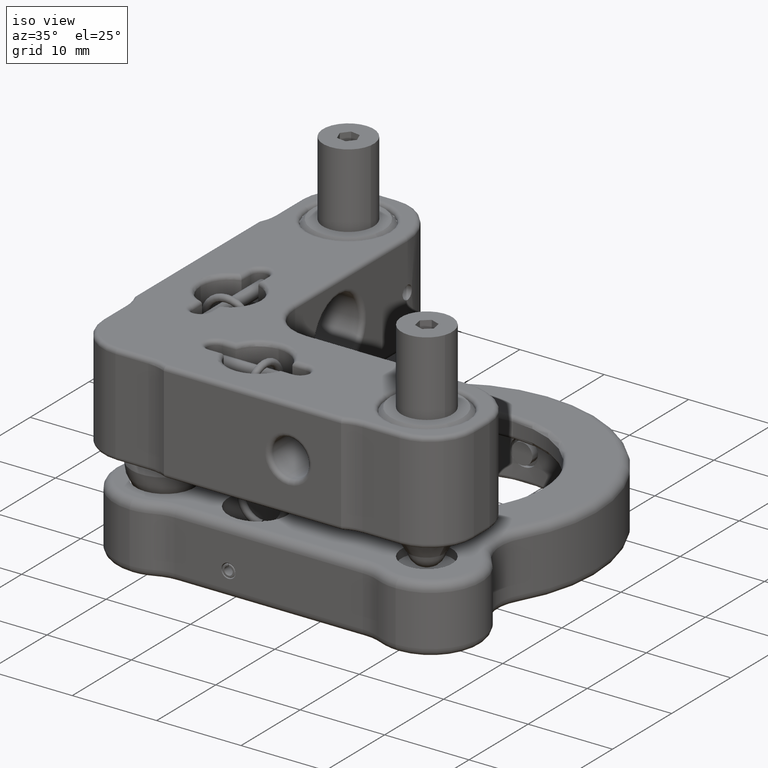
[diagram: clean part render]
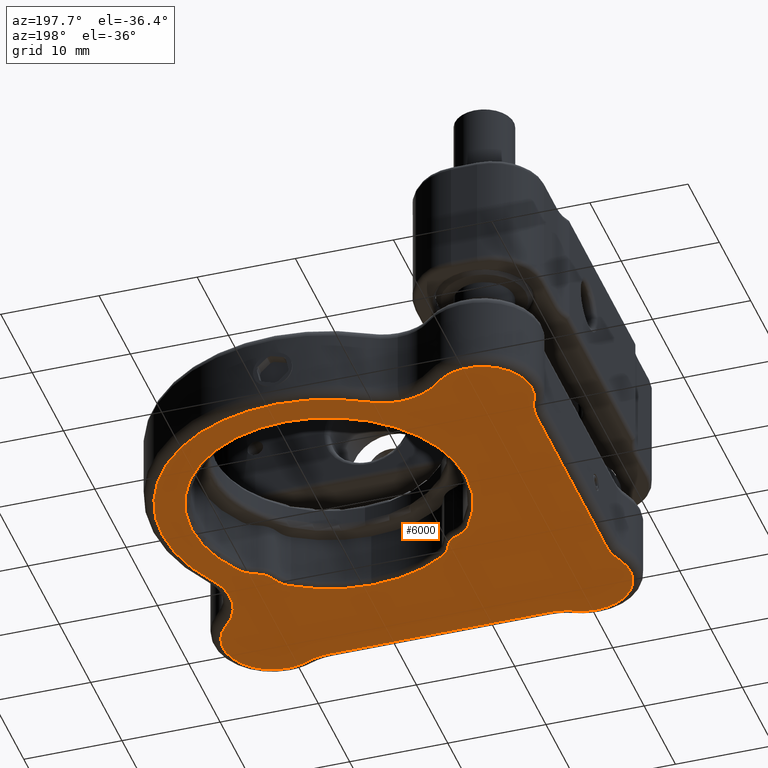
[diagram: tour spotlight — one face highlighted and labeled with its STEP entity id]
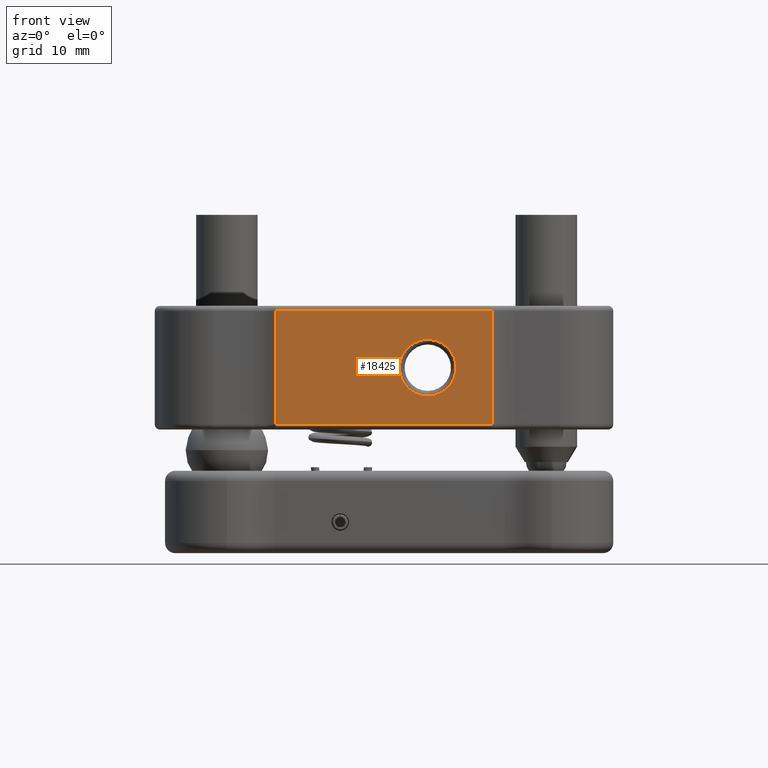
[diagram: tour spotlight — one face highlighted and labeled with its STEP entity id]
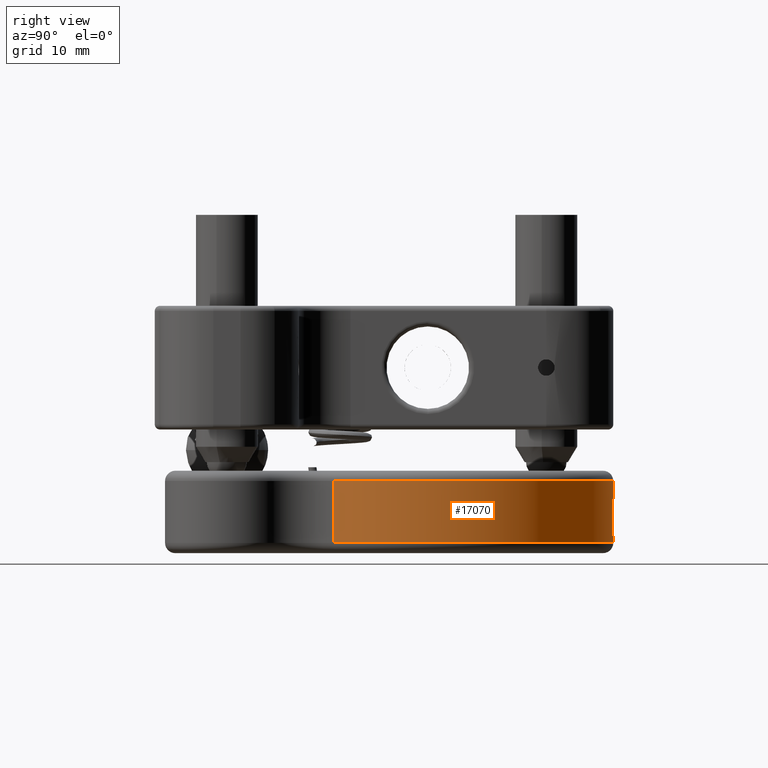
[diagram: tour spotlight — one face highlighted and labeled with its STEP entity id]
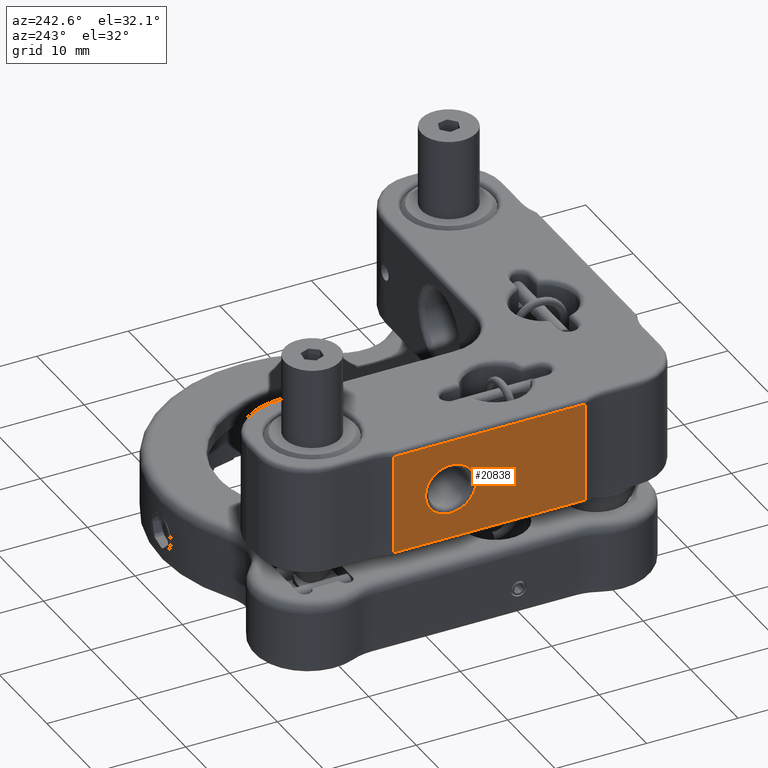
[diagram: tour spotlight — one face highlighted and labeled with its STEP entity id]
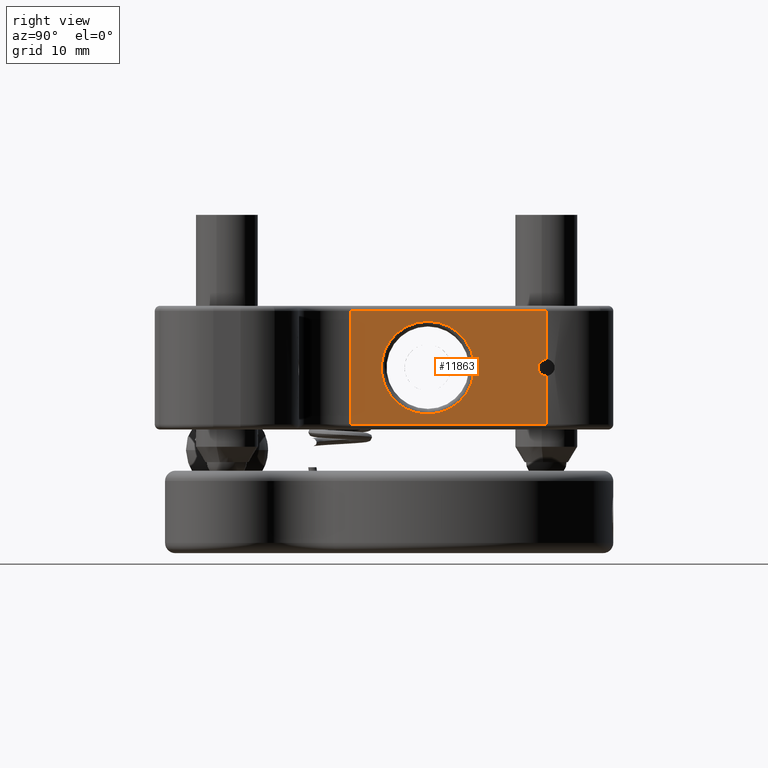
[diagram: tour spotlight — one face highlighted and labeled with its STEP entity id]
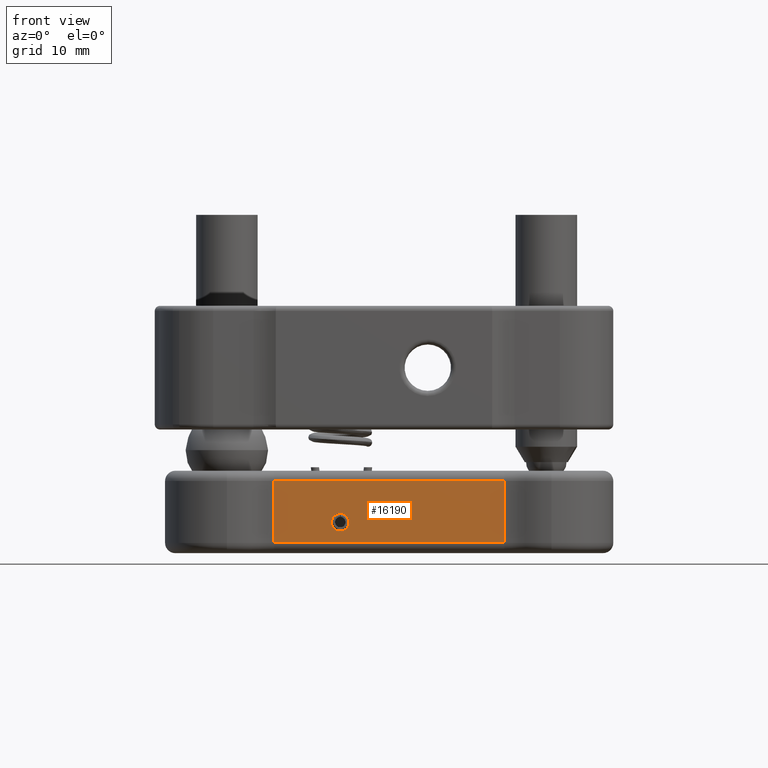
[diagram: tour spotlight — one face highlighted and labeled with its STEP entity id]
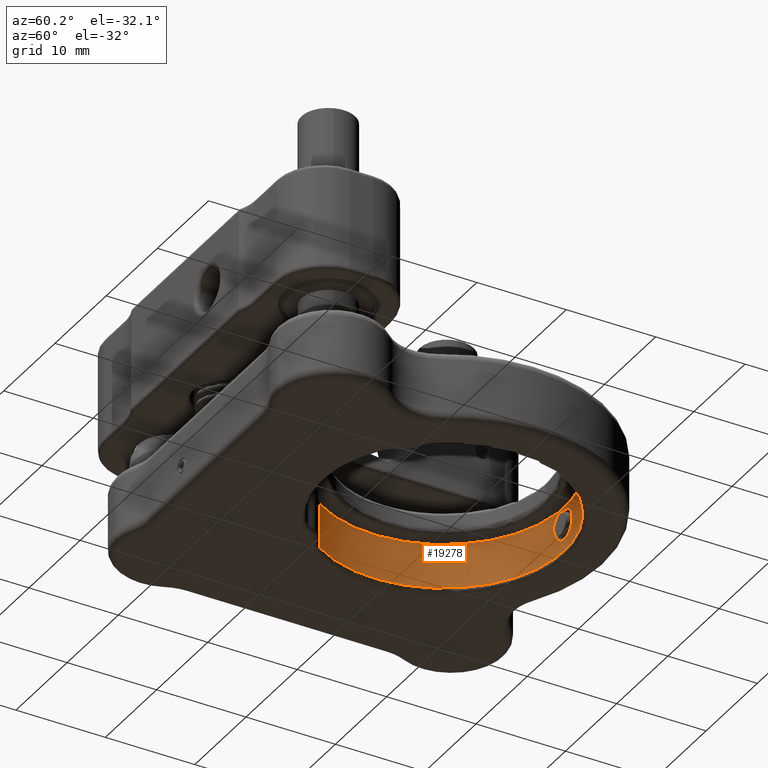
[diagram: tour spotlight — one face highlighted and labeled with its STEP entity id]
A machine part: a face-by-face anatomy tour. The part has 381 B-rep faces; the first image is the clean iso view, then the 7 largest visible faces are spotlighted one at a time (largest first), each with its STEP entity span.

Face 1 — auxiliary view, entity #6000. In plain terms, the highlighted planar face has unit normal (0, 0, -1).
Definition (entity closure, byte-faithful):
#119 = CARTESIAN_POINT ( 'NONE',  ( 2.082988952252645000, -4.545454545454559200, -18.00000000000000700 ) ) ;
#248 = EDGE_CURVE ( 'NONE', #8102, #9065, #2758, .T. ) ;
#262 = ORIENTED_EDGE ( 'NONE', *, *, #21569, .T. ) ;
#564 = VERTEX_POINT ( 'NONE', #13110 ) ;
#590 = DIRECTION ( 'NONE',  ( -0.0000000000000000000, 2.775557561562892000E-017, 1.000000000000000000 ) ) ;
#625 = DIRECTION ( 'NONE',  ( -0.0000000000000000000, 2.775557561562892000E-017, 1.000000000000000000 ) ) ;
#642 = ORIENTED_EDGE ( 'NONE', *, *, #13116, .T. ) ;
#679 = CIRCLE ( 'NONE', #10154, 4.999999999999998200 ) ;
#689 = EDGE_CURVE ( 'NONE', #17701, #16690, #11187, .T. ) ;
#795 = EDGE_CURVE ( 'NONE', #19894, #18740, #5336, .T. ) ;
#812 = CARTESIAN_POINT ( 'NONE',  ( 31.17342056034663900, 11.77140035832635700, -18.00000000000000700 ) ) ;
#1033 = CARTESIAN_POINT ( 'NONE',  ( 7.771464153072663800, 39.28487924874288200, -18.00000000000000400 ) ) ;
#1048 = EDGE_CURVE ( 'NONE', #7087, #4546, #20586, .T. ) ;
#1211 = ORIENTED_EDGE ( 'NONE', *, *, #19295, .T. ) ;
#1240 = CARTESIAN_POINT ( 'NONE',  ( -4.545454545454536100, 2.082988952252656100, -18.00000000000000700 ) ) ;
#1431 = CIRCLE ( 'NONE', #9144, 4.999999999999998200 ) ;
#1480 = VECTOR ( 'NONE', #4867, 1000.000000000000000 ) ;
#1613 = ORIENTED_EDGE ( 'NONE', *, *, #6019, .T. ) ;
#1670 = EDGE_LOOP ( 'NONE', ( #3590, #19808, #4199, #20362, #7735, #8994, #642, #10164, #13158, #262, #17654, #17957, #17434, #20041, #13710 ) ) ;
#1726 = EDGE_CURVE ( 'NONE', #14289, #564, #12574, .T. ) ;
#1901 = CARTESIAN_POINT ( 'NONE',  ( 19.49999999999999300, 5.499999999999927200, -18.00000000000000700 ) ) ;
#2102 = CARTESIAN_POINT ( 'NONE',  ( -3.999999999999986200, 4.582575694955836300, -18.00000000000000700 ) ) ;
#2147 = CARTESIAN_POINT ( 'NONE',  ( -9.999999999999932500, 26.91742430504416800, -18.00000000000000700 ) ) ;
#2573 = VERTEX_POINT ( 'NONE', #11385 ) ;
#2741 = DIRECTION ( 'NONE',  ( -2.312964634635743400E-015, -1.000000000000000000, 0.0000000000000000000 ) ) ;
#2758 = CIRCLE ( 'NONE', #11434, 2.000000000000003600 ) ;
#2761 = ORIENTED_EDGE ( 'NONE', *, *, #19907, .T. ) ;
#2795 = VERTEX_POINT ( 'NONE', #119 ) ;
#3168 = EDGE_CURVE ( 'NONE', #18740, #14289, #19553, .T. ) ;
#3481 = AXIS2_PLACEMENT_3D ( 'NONE', #14417, #4257, #16137 ) ;
#3590 = ORIENTED_EDGE ( 'NONE', *, *, #11656, .T. ) ;
#3842 = DIRECTION ( 'NONE',  ( -5.782411586589358600E-016, -1.000000000000000000, 0.0000000000000000000 ) ) ;
#4132 = CARTESIAN_POINT ( 'NONE',  ( 4.582575694955830100, -4.000000000000019500, -18.00000000000000700 ) ) ;
#4150 = DIRECTION ( 'NONE',  ( 0.0000000000000000000, -2.775557561562892000E-017, -1.000000000000000000 ) ) ;
#4199 = ORIENTED_EDGE ( 'NONE', *, *, #18899, .T. ) ;
#4208 = AXIS2_PLACEMENT_3D ( 'NONE', #5513, #17370, #7229 ) ;
#4257 = DIRECTION ( 'NONE',  ( 0.0000000000000000000, -2.775557561562892000E-017, -1.000000000000000000 ) ) ;
#4469 = DIRECTION ( 'NONE',  ( -0.0000000000000000000, 2.775557561562892000E-017, 1.000000000000000000 ) ) ;
#4546 = VERTEX_POINT ( 'NONE', #20153 ) ;
#4599 = CARTESIAN_POINT ( 'NONE',  ( 31.49999999999997200, -6.765421556309547700E-014, -18.00000000000000700 ) ) ;
#4604 = DIRECTION ( 'NONE',  ( -0.0000000000000000000, 2.775557561562892000E-017, 1.000000000000000000 ) ) ;
#4753 = AXIS2_PLACEMENT_3D ( 'NONE', #17096, #6948, #18807 ) ;
#4867 = DIRECTION ( 'NONE',  ( 2.310651670001107000E-015, 1.000000000000000000, 5.551115123125782700E-017 ) ) ;
#4999 = DIRECTION ( 'NONE',  ( -0.0000000000000000000, 2.775557561562892000E-017, 1.000000000000000000 ) ) ;
#5244 = AXIS2_PLACEMENT_3D ( 'NONE', #17697, #7548, #19407 ) ;
#5336 = CIRCLE ( 'NONE', #19656, 14.00000000000000000 ) ;
#5344 = CARTESIAN_POINT ( 'NONE',  ( 19.50000000000002500, 19.49999999999992500, -18.00000000000000700 ) ) ;
#5444 = VERTEX_POINT ( 'NONE', #1240 ) ;
#5513 = CARTESIAN_POINT ( 'NONE',  ( 13.42752885297088600, 10.32802670258466500, -18.00000000000000700 ) ) ;
#5526 = DIRECTION ( 'NONE',  ( 0.0000000000000000000, -2.775557561562892000E-017, -1.000000000000000000 ) ) ;
#5540 = EDGE_CURVE ( 'NONE', #10118, #2573, #13963, .T. ) ;
#5669 = CARTESIAN_POINT ( 'NONE',  ( 31.49999999999995700, -5.000000000000071900, -18.00000000000000700 ) ) ;
#5787 = EDGE_CURVE ( 'NONE', #12639, #8268, #16865, .T. ) ;
#5975 = LINE ( 'NONE', #11623, #1480 ) ;
#5998 = CARTESIAN_POINT ( 'NONE',  ( 1.734723475976807100E-015, -8.673617379884035500E-015, -18.00000000000000700 ) ) ;
#6000 = ADVANCED_FACE ( 'NONE', ( #11560, #21106 ), #9949, .T. ) ;
#6019 = EDGE_CURVE ( 'NONE', #2573, #8102, #9952, .T. ) ;
#6121 = EDGE_CURVE ( 'NONE', #11058, #5444, #679, .T. ) ;
#6329 = DIRECTION ( 'NONE',  ( -2.775557561562889000E-015, -1.000000000000000000, 0.0000000000000000000 ) ) ;
#6649 = CARTESIAN_POINT ( 'NONE',  ( 19.50000000000002500, 19.49999999999992500, -18.00000000000000700 ) ) ;
#6659 = CIRCLE ( 'NONE', #9278, 14.00000000000000000 ) ;
#6895 = CARTESIAN_POINT ( 'NONE',  ( 4.582575694955815800, -10.00000000000002000, -18.00000000000000700 ) ) ;
#6941 = CARTESIAN_POINT ( 'NONE',  ( -1.097386070902928000E-014, -5.000000000000007100, -18.00000000000000700 ) ) ;
#6948 = DIRECTION ( 'NONE',  ( -0.0000000000000000000, 2.775557561562892000E-017, 1.000000000000000000 ) ) ;
#7055 = DIRECTION ( 'NONE',  ( -2.244936263028809800E-015, -1.000000000000000000, 0.0000000000000000000 ) ) ;
#7087 = VERTEX_POINT ( 'NONE', #19434 ) ;
#7229 = DIRECTION ( 'NONE',  ( -5.782411586589356700E-016, -1.000000000000000000, 0.0000000000000000000 ) ) ;
#7407 = AXIS2_PLACEMENT_3D ( 'NONE', #14307, #4150, #16019 ) ;
#7429 = CARTESIAN_POINT ( 'NONE',  ( 27.22859964167343000, 7.826579439653199800, -18.00000000000000700 ) ) ;
#7548 = DIRECTION ( 'NONE',  ( 0.0000000000000000000, -2.775557561562892000E-017, -1.000000000000000000 ) ) ;
#7691 = DIRECTION ( 'NONE',  ( -2.310651670001107000E-015, -1.000000000000000000, 0.0000000000000000000 ) ) ;
#7735 = ORIENTED_EDGE ( 'NONE', *, *, #21709, .T. ) ;
#8079 = EDGE_LOOP ( 'NONE', ( #17811, #1613, #15288, #2761, #1211, #19751, #19256, #15078, #11881 ) ) ;
#8102 = VERTEX_POINT ( 'NONE', #19623 ) ;
#8268 = VERTEX_POINT ( 'NONE', #16592 ) ;
#8321 = DIRECTION ( 'NONE',  ( 1.924004014442848600E-031, 5.551115123125782700E-017, -1.000000000000000000 ) ) ;
#8323 = DIRECTION ( 'NONE',  ( -2.230358754827323500E-015, -1.000000000000000000, 0.0000000000000000000 ) ) ;
#8579 = DIRECTION ( 'NONE',  ( -2.312964634635743400E-015, -1.000000000000000000, 0.0000000000000000000 ) ) ;
#8642 = CARTESIAN_POINT ( 'NONE',  ( 19.50000000000002500, 19.49999999999992500, -18.00000000000000700 ) ) ;
#8745 = CARTESIAN_POINT ( 'NONE',  ( 39.28487924874293200, 7.771464153072468400, -18.00000000000000700 ) ) ;
#8863 = CIRCLE ( 'NONE', #13632, 5.999999999999998200 ) ;
#8994 = ORIENTED_EDGE ( 'NONE', *, *, #5787, .T. ) ;
#9008 = DIRECTION ( 'NONE',  ( -0.0000000000000000000, 2.775557561562892000E-017, 1.000000000000000000 ) ) ;
#9065 = VERTEX_POINT ( 'NONE', #10212 ) ;
#9144 = AXIS2_PLACEMENT_3D ( 'NONE', #5998, #17845, #7691 ) ;
#9278 = AXIS2_PLACEMENT_3D ( 'NONE', #19173, #9008, #20896 ) ;
#9426 = AXIS2_PLACEMENT_3D ( 'NONE', #15180, #4999, #16869 ) ;
#9846 = CARTESIAN_POINT ( 'NONE',  ( 8.700000000000114800, 8.699999999999953100, -18.00000000000000700 ) ) ;
#9902 = EDGE_CURVE ( 'NONE', #16690, #21232, #18423, .T. ) ;
#9949 = PLANE ( 'NONE',  #10571 ) ;
#9952 = CIRCLE ( 'NONE', #9426, 2.999999999999999100 ) ;
#9991 = CARTESIAN_POINT ( 'NONE',  ( 34.12360640124477800, 10.83108220009703100, -18.00000000000000700 ) ) ;
#10118 = VERTEX_POINT ( 'NONE', #812 ) ;
#10154 = AXIS2_PLACEMENT_3D ( 'NONE', #15705, #5526, #17390 ) ;
#10164 = ORIENTED_EDGE ( 'NONE', *, *, #689, .T. ) ;
#10204 = AXIS2_PLACEMENT_3D ( 'NONE', #8745, #20613, #10436 ) ;
#10212 = CARTESIAN_POINT ( 'NONE',  ( 10.59101154118842200, 9.351210681033837300, -18.00000000000000700 ) ) ;
#10261 = EDGE_CURVE ( 'NONE', #14125, #7087, #12826, .T. ) ;
#10344 = DIRECTION ( 'NONE',  ( -2.230358754827323500E-015, -1.000000000000000000, 0.0000000000000000000 ) ) ;
#10436 = DIRECTION ( 'NONE',  ( -5.782411586589356500E-015, -1.000000000000000000, 0.0000000000000000000 ) ) ;
#10571 = AXIS2_PLACEMENT_3D ( 'NONE', #18499, #8321, #20204 ) ;
#10642 = CIRCLE ( 'NONE', #11714, 5.999999999999999100 ) ;
#10750 = CARTESIAN_POINT ( 'NONE',  ( 28.67197329741521400, 13.42752885297069200, -18.00000000000000700 ) ) ;
#10789 = CARTESIAN_POINT ( 'NONE',  ( 7.771464153072663800, 39.28487924874288200, -18.00000000000000400 ) ) ;
#11058 = VERTEX_POINT ( 'NONE', #6941 ) ;
#11187 = CIRCLE ( 'NONE', #21216, 5.999999999999998200 ) ;
#11366 = CIRCLE ( 'NONE', #4208, 3.000000000000000000 ) ;
#11385 = CARTESIAN_POINT ( 'NONE',  ( 7.826579439653373000, 11.77140035832641200, -18.00000000000000700 ) ) ;
#11434 = AXIS2_PLACEMENT_3D ( 'NONE', #9846, #21733, #11555 ) ;
#11538 = CARTESIAN_POINT ( 'NONE',  ( 11.77140035832657500, 7.826579439653229100, -18.00000000000000700 ) ) ;
#11543 = AXIS2_PLACEMENT_3D ( 'NONE', #10750, #590, #12468 ) ;
#11555 = DIRECTION ( 'NONE',  ( -2.602085213965205900E-015, -1.000000000000000000, 0.0000000000000000000 ) ) ;
#11560 = FACE_BOUND ( 'NONE', #8079, .T. ) ;
#11566 = EDGE_CURVE ( 'NONE', #4546, #20211, #12558, .T. ) ;
#11623 = CARTESIAN_POINT ( 'NONE',  ( -3.999999999999986200, 4.582575694955836300, -18.00000000000000700 ) ) ;
#11656 = EDGE_CURVE ( 'NONE', #2795, #11058, #1431, .T. ) ;
#11714 = AXIS2_PLACEMENT_3D ( 'NONE', #14783, #4604, #16486 ) ;
#11881 = ORIENTED_EDGE ( 'NONE', *, *, #15354, .T. ) ;
#12087 = AXIS2_PLACEMENT_3D ( 'NONE', #14632, #4469, #16337 ) ;
#12129 = AXIS2_PLACEMENT_3D ( 'NONE', #10789, #625, #12505 ) ;
#12468 = DIRECTION ( 'NONE',  ( -2.312964634635743400E-015, -1.000000000000000000, 0.0000000000000000000 ) ) ;
#12505 = DIRECTION ( 'NONE',  ( 1.301042606982605700E-015, -1.000000000000000000, 0.0000000000000000000 ) ) ;
#12558 = LINE ( 'NONE', #4132, #21048 ) ;
#12574 = CIRCLE ( 'NONE', #7407, 2.000000000000005300 ) ;
#12639 = VERTEX_POINT ( 'NONE', #13683 ) ;
#12661 = CIRCLE ( 'NONE', #17936, 5.999999999999998200 ) ;
#12826 = CIRCLE ( 'NONE', #13810, 5.000000000000004400 ) ;
#12904 = DIRECTION ( 'NONE',  ( -0.0000000000000000000, 2.775557561562892000E-017, 1.000000000000000000 ) ) ;
#13110 = CARTESIAN_POINT ( 'NONE',  ( 29.64878931896602100, 10.59101154118822000, -18.00000000000000700 ) ) ;
#13116 = EDGE_CURVE ( 'NONE', #8268, #17701, #15163, .T. ) ;
#13158 = ORIENTED_EDGE ( 'NONE', *, *, #9902, .T. ) ;
#13524 = CIRCLE ( 'NONE', #11543, 2.999999999999999100 ) ;
#13555 = VERTEX_POINT ( 'NONE', #11538 ) ;
#13632 = AXIS2_PLACEMENT_3D ( 'NONE', #2147, #14019, #3842 ) ;
#13683 = CARTESIAN_POINT ( 'NONE',  ( -4.545454545454472100, 29.41701104774733700, -18.00000000000000700 ) ) ;
#13710 = ORIENTED_EDGE ( 'NONE', *, *, #17274, .T. ) ;
#13810 = AXIS2_PLACEMENT_3D ( 'NONE', #4599, #16480, #6329 ) ;
#13921 = CIRCLE ( 'NONE', #10204, 6.000000000000000900 ) ;
#13963 = CIRCLE ( 'NONE', #14245, 13.99999999999999800 ) ;
#14019 = DIRECTION ( 'NONE',  ( -0.0000000000000000000, 2.775557561562892000E-017, 1.000000000000000000 ) ) ;
#14125 = VERTEX_POINT ( 'NONE', #5669 ) ;
#14245 = AXIS2_PLACEMENT_3D ( 'NONE', #6649, #18504, #8323 ) ;
#14289 = VERTEX_POINT ( 'NONE', #20072 ) ;
#14307 = CARTESIAN_POINT ( 'NONE',  ( 30.29999999999989100, 8.699999999999903400, -18.00000000000000700 ) ) ;
#14417 = CARTESIAN_POINT ( 'NONE',  ( 7.806255641895631900E-014, 31.49999999999997200, -18.00000000000000700 ) ) ;
#14632 = CARTESIAN_POINT ( 'NONE',  ( 26.91742430504412600, -10.00000000000005900, -18.00000000000000700 ) ) ;
#14783 = CARTESIAN_POINT ( 'NONE',  ( -9.999999999999984000, 4.582575694955849600, -18.00000000000000700 ) ) ;
#15078 = ORIENTED_EDGE ( 'NONE', *, *, #1726, .T. ) ;
#15163 = CIRCLE ( 'NONE', #12129, 5.999999999999998200 ) ;
#15180 = CARTESIAN_POINT ( 'NONE',  ( 10.32802670258479700, 13.42752885297073600, -18.00000000000000700 ) ) ;
#15288 = ORIENTED_EDGE ( 'NONE', *, *, #248, .T. ) ;
#15322 = VERTEX_POINT ( 'NONE', #2102 ) ;
#15335 = VERTEX_POINT ( 'NONE', #17502 ) ;
#15354 = EDGE_CURVE ( 'NONE', #564, #10118, #13524, .T. ) ;
#15449 = CARTESIAN_POINT ( 'NONE',  ( 10.83108220009720100, 34.12360640124473600, -18.00000000000000400 ) ) ;
#15705 = CARTESIAN_POINT ( 'NONE',  ( 1.734723475976807100E-015, -8.673617379884035500E-015, -18.00000000000000700 ) ) ;
#16004 = DIRECTION ( 'NONE',  ( -1.000000000000000000, 1.873734833701938900E-015, -2.155745465314373500E-032 ) ) ;
#16019 = DIRECTION ( 'NONE',  ( -1.734723475976802600E-015, -1.000000000000000000, 0.0000000000000000000 ) ) ;
#16137 = DIRECTION ( 'NONE',  ( -2.310651670001106300E-015, -1.000000000000000000, 0.0000000000000000000 ) ) ;
#16337 = DIRECTION ( 'NONE',  ( -5.782411586589360400E-015, -1.000000000000000000, 0.0000000000000000000 ) ) ;
#16480 = DIRECTION ( 'NONE',  ( 0.0000000000000000000, -2.775557561562892000E-017, -1.000000000000000000 ) ) ;
#16486 = DIRECTION ( 'NONE',  ( -2.312964634635743100E-015, -1.000000000000000000, 0.0000000000000000000 ) ) ;
#16592 = CARTESIAN_POINT ( 'NONE',  ( 3.532483705942167900, 35.03858147670128900, -18.00000000000000400 ) ) ;
#16690 = VERTEX_POINT ( 'NONE', #15449 ) ;
#16865 = CIRCLE ( 'NONE', #3481, 5.000000000000004400 ) ;
#16869 = DIRECTION ( 'NONE',  ( -9.251858538542973800E-015, -1.000000000000000000, 0.0000000000000000000 ) ) ;
#17096 = CARTESIAN_POINT ( 'NONE',  ( 25.57247114702912300, 10.32802670258464100, -18.00000000000000700 ) ) ;
#17209 = DIRECTION ( 'NONE',  ( 0.0000000000000000000, -2.775557561562892000E-017, -1.000000000000000000 ) ) ;
#17274 = EDGE_CURVE ( 'NONE', #20211, #2795, #12661, .T. ) ;
#17370 = DIRECTION ( 'NONE',  ( -0.0000000000000000000, 2.775557561562892000E-017, 1.000000000000000000 ) ) ;
#17390 = DIRECTION ( 'NONE',  ( -2.310651670001107000E-015, -1.000000000000000000, 0.0000000000000000000 ) ) ;
#17434 = ORIENTED_EDGE ( 'NONE', *, *, #1048, .T. ) ;
#17487 = VERTEX_POINT ( 'NONE', #19395 ) ;
#17502 = CARTESIAN_POINT ( 'NONE',  ( 35.03858147670131700, 3.532483705941993300, -18.00000000000000700 ) ) ;
#17654 = ORIENTED_EDGE ( 'NONE', *, *, #21886, .T. ) ;
#17697 = CARTESIAN_POINT ( 'NONE',  ( 31.49999999999997200, -6.765421556309547700E-014, -18.00000000000000700 ) ) ;
#17701 = VERTEX_POINT ( 'NONE', #20074 ) ;
#17712 = EDGE_CURVE ( 'NONE', #15322, #17487, #5975, .T. ) ;
#17811 = ORIENTED_EDGE ( 'NONE', *, *, #5540, .T. ) ;
#17845 = DIRECTION ( 'NONE',  ( 0.0000000000000000000, -2.775557561562892000E-017, -1.000000000000000000 ) ) ;
#17936 = AXIS2_PLACEMENT_3D ( 'NONE', #6895, #18755, #8579 ) ;
#17957 = ORIENTED_EDGE ( 'NONE', *, *, #10261, .T. ) ;
#18067 = AXIS2_PLACEMENT_3D ( 'NONE', #5344, #17209, #7055 ) ;
#18423 = CIRCLE ( 'NONE', #18067, 16.99999999999999600 ) ;
#18499 = CARTESIAN_POINT ( 'NONE',  ( -9.999999999999984000, 4.582575694955849600, -18.00000000000000700 ) ) ;
#18504 = DIRECTION ( 'NONE',  ( -0.0000000000000000000, 2.775557561562892000E-017, 1.000000000000000000 ) ) ;
#18740 = VERTEX_POINT ( 'NONE', #7429 ) ;
#18755 = DIRECTION ( 'NONE',  ( -0.0000000000000000000, 2.775557561562892000E-017, 1.000000000000000000 ) ) ;
#18807 = DIRECTION ( 'NONE',  ( -3.469446951953614200E-015, -1.000000000000000000, 0.0000000000000000000 ) ) ;
#18899 = EDGE_CURVE ( 'NONE', #5444, #15322, #10642, .T. ) ;
#19173 = CARTESIAN_POINT ( 'NONE',  ( 19.50000000000002500, 19.49999999999992500, -18.00000000000000700 ) ) ;
#19256 = ORIENTED_EDGE ( 'NONE', *, *, #3168, .T. ) ;
#19295 = EDGE_CURVE ( 'NONE', #13555, #19894, #6659, .T. ) ;
#19395 = CARTESIAN_POINT ( 'NONE',  ( -3.999999999999935200, 26.91742430504415400, -18.00000000000000700 ) ) ;
#19407 = DIRECTION ( 'NONE',  ( -2.775557561562889000E-015, -1.000000000000000000, 0.0000000000000000000 ) ) ;
#19434 = CARTESIAN_POINT ( 'NONE',  ( 29.41701104774731200, -4.545454545454616900, -18.00000000000000700 ) ) ;
#19553 = CIRCLE ( 'NONE', #4753, 3.000000000000000000 ) ;
#19623 = CARTESIAN_POINT ( 'NONE',  ( 9.351210681033988300, 10.59101154118826900, -18.00000000000000700 ) ) ;
#19656 = AXIS2_PLACEMENT_3D ( 'NONE', #8642, #20511, #10344 ) ;
#19751 = ORIENTED_EDGE ( 'NONE', *, *, #795, .T. ) ;
#19808 = ORIENTED_EDGE ( 'NONE', *, *, #6121, .T. ) ;
#19894 = VERTEX_POINT ( 'NONE', #1901 ) ;
#19907 = EDGE_CURVE ( 'NONE', #9065, #13555, #11366, .T. ) ;
#20041 = ORIENTED_EDGE ( 'NONE', *, *, #11566, .T. ) ;
#20072 = CARTESIAN_POINT ( 'NONE',  ( 28.40898845881157400, 9.351210681033801800, -18.00000000000000700 ) ) ;
#20074 = CARTESIAN_POINT ( 'NONE',  ( 7.771464153072649600, 33.28487924874288200, -18.00000000000000400 ) ) ;
#20153 = CARTESIAN_POINT ( 'NONE',  ( 26.91742430504414000, -4.000000000000063100, -18.00000000000000700 ) ) ;
#20204 = DIRECTION ( 'NONE',  ( -2.310651670001107000E-015, -1.000000000000000000, -5.551115123125782700E-017 ) ) ;
#20211 = VERTEX_POINT ( 'NONE', #21235 ) ;
#20362 = ORIENTED_EDGE ( 'NONE', *, *, #17712, .T. ) ;
#20511 = DIRECTION ( 'NONE',  ( -0.0000000000000000000, 2.775557561562892000E-017, 1.000000000000000000 ) ) ;
#20586 = CIRCLE ( 'NONE', #12087, 5.999999999999996400 ) ;
#20613 = DIRECTION ( 'NONE',  ( -0.0000000000000000000, 2.775557561562892000E-017, 1.000000000000000000 ) ) ;
#20896 = DIRECTION ( 'NONE',  ( -3.965082230804130600E-015, -1.000000000000000000, 0.0000000000000000000 ) ) ;
#21048 = VECTOR ( 'NONE', #16004, 1000.000000000000000 ) ;
#21106 = FACE_OUTER_BOUND ( 'NONE', #1670, .T. ) ;
#21216 = AXIS2_PLACEMENT_3D ( 'NONE', #1033, #12904, #2741 ) ;
#21232 = VERTEX_POINT ( 'NONE', #9991 ) ;
#21235 = CARTESIAN_POINT ( 'NONE',  ( 4.582575694955830100, -4.000000000000019500, -18.00000000000000700 ) ) ;
#21569 = EDGE_CURVE ( 'NONE', #21232, #15335, #13921, .T. ) ;
#21601 = CIRCLE ( 'NONE', #5244, 5.000000000000004400 ) ;
#21709 = EDGE_CURVE ( 'NONE', #17487, #12639, #8863, .T. ) ;
#21733 = DIRECTION ( 'NONE',  ( 0.0000000000000000000, -2.775557561562892000E-017, -1.000000000000000000 ) ) ;
#21886 = EDGE_CURVE ( 'NONE', #15335, #14125, #21601, .T. ) ;

Face 2 — front view, entity #18425. In plain terms, the highlighted planar face has unit normal (0, 1, -0).
Definition (entity closure, byte-faithful):
#414 = CARTESIAN_POINT ( 'NONE',  ( 4.749999999999980500, -7.000000000000000900, -5.500000000000000000 ) ) ;
#995 = EDGE_LOOP ( 'NONE', ( #10771, #3597 ) ) ;
#999 = CARTESIAN_POINT ( 'NONE',  ( 31.00000000000000700, -7.000000000000001800, 5.500000000000000000 ) ) ;
#1073 = AXIS2_PLACEMENT_3D ( 'NONE', #18712, #8536, #20417 ) ;
#1675 = DIRECTION ( 'NONE',  ( -1.533343436975556800E-017, 8.970190802864523500E-017, 1.000000000000000000 ) ) ;
#2753 = FACE_OUTER_BOUND ( 'NONE', #6386, .T. ) ;
#3170 = DIRECTION ( 'NONE',  ( 1.533343436975556800E-017, -8.970190802864523500E-017, -1.000000000000000000 ) ) ;
#3597 = ORIENTED_EDGE ( 'NONE', *, *, #6079, .T. ) ;
#4911 = VERTEX_POINT ( 'NONE', #7226 ) ;
#5841 = VERTEX_POINT ( 'NONE', #6126 ) ;
#5961 = VECTOR ( 'NONE', #19605, 1000.000000000000000 ) ;
#6079 = EDGE_CURVE ( 'NONE', #14828, #16927, #11315, .T. ) ;
#6126 = CARTESIAN_POINT ( 'NONE',  ( 25.74999999999996800, -7.000000000000002700, -5.500000000000000000 ) ) ;
#6386 = EDGE_LOOP ( 'NONE', ( #18284, #8417, #16855, #13722 ) ) ;
#6583 = CARTESIAN_POINT ( 'NONE',  ( 19.49999999999996100, -7.000000000000000900, 3.242440937260150000E-016 ) ) ;
#6699 = EDGE_CURVE ( 'NONE', #4911, #5841, #7042, .T. ) ;
#7042 = LINE ( 'NONE', #8201, #10467 ) ;
#7226 = CARTESIAN_POINT ( 'NONE',  ( 25.74999999999996800, -7.000000000000000900, 5.500000000000000000 ) ) ;
#7239 = EDGE_CURVE ( 'NONE', #12645, #14070, #16823, .T. ) ;
#8201 = CARTESIAN_POINT ( 'NONE',  ( 25.74999999999996800, -7.000000000000000900, 6.000000000000000000 ) ) ;
#8257 = DIRECTION ( 'NONE',  ( 0.0000000000000000000, 0.0000000000000000000, 1.000000000000000000 ) ) ;
#8417 = ORIENTED_EDGE ( 'NONE', *, *, #18050, .T. ) ;
#8536 = DIRECTION ( 'NONE',  ( -2.352032944881132500E-049, 1.000000000000000000, -4.632058481800215900E-017 ) ) ;
#8540 = AXIS2_PLACEMENT_3D ( 'NONE', #6583, #18427, #8257 ) ;
#10467 = VECTOR ( 'NONE', #3170, 1000.000000000000000 ) ;
#10771 = ORIENTED_EDGE ( 'NONE', *, *, #12467, .T. ) ;
#10992 = LINE ( 'NONE', #12955, #5961 ) ;
#11315 = CIRCLE ( 'NONE', #1073, 2.749999999999996900 ) ;
#11773 = FACE_BOUND ( 'NONE', #995, .T. ) ;
#11820 = DIRECTION ( 'NONE',  ( 6.651846723235491700E-034, 1.000000000000000000, -8.970190802864523500E-017 ) ) ;
#11850 = AXIS2_PLACEMENT_3D ( 'NONE', #21973, #11820, #1675 ) ;
#12232 = CIRCLE ( 'NONE', #8540, 2.749999999999996900 ) ;
#12293 = VECTOR ( 'NONE', #14874, 1000.000000000000000 ) ;
#12467 = EDGE_CURVE ( 'NONE', #16927, #14828, #12232, .T. ) ;
#12645 = VERTEX_POINT ( 'NONE', #17014 ) ;
#12955 = CARTESIAN_POINT ( 'NONE',  ( 25.74999999999996800, -7.000000000000002700, -5.500000000000000000 ) ) ;
#13722 = ORIENTED_EDGE ( 'NONE', *, *, #16317, .T. ) ;
#14070 = VERTEX_POINT ( 'NONE', #414 ) ;
#14828 = VERTEX_POINT ( 'NONE', #21461 ) ;
#14874 = DIRECTION ( 'NONE',  ( 1.533343436975556800E-017, -8.970190802864523500E-017, -1.000000000000000000 ) ) ;
#16317 = EDGE_CURVE ( 'NONE', #14070, #5841, #10992, .T. ) ;
#16796 = PLANE ( 'NONE',  #11850 ) ;
#16823 = LINE ( 'NONE', #21590, #12293 ) ;
#16855 = ORIENTED_EDGE ( 'NONE', *, *, #7239, .T. ) ;
#16927 = VERTEX_POINT ( 'NONE', #20987 ) ;
#17014 = CARTESIAN_POINT ( 'NONE',  ( 4.749999999999980500, -6.999999999999999100, 5.500000000000000000 ) ) ;
#17588 = LINE ( 'NONE', #999, #21593 ) ;
#18050 = EDGE_CURVE ( 'NONE', #4911, #12645, #17588, .T. ) ;
#18284 = ORIENTED_EDGE ( 'NONE', *, *, #6699, .F. ) ;
#18425 = ADVANCED_FACE ( 'NONE', ( #11773, #2753 ), #16796, .F. ) ;
#18427 = DIRECTION ( 'NONE',  ( -2.352032944881132500E-049, 1.000000000000000000, -4.632058481800215900E-017 ) ) ;
#18712 = CARTESIAN_POINT ( 'NONE',  ( 19.49999999999996100, -7.000000000000000900, 3.242440937260150000E-016 ) ) ;
#19605 = DIRECTION ( 'NONE',  ( 1.000000000000000000, -1.110223024625156300E-016, -7.703719777548941700E-034 ) ) ;
#20417 = DIRECTION ( 'NONE',  ( 0.0000000000000000000, 0.0000000000000000000, 1.000000000000000000 ) ) ;
#20987 = CARTESIAN_POINT ( 'NONE',  ( 19.49999999999996100, -7.000000000000000900, 2.749999999999997300 ) ) ;
#21310 = DIRECTION ( 'NONE',  ( -1.000000000000000000, 1.110223024625156300E-016, 7.703719777548941700E-034 ) ) ;
#21461 = CARTESIAN_POINT ( 'NONE',  ( 19.49999999999996100, -7.000000000000000900, -2.749999999999996400 ) ) ;
#21590 = CARTESIAN_POINT ( 'NONE',  ( 4.749999999999980500, -6.999999999999999100, 6.000000000000000000 ) ) ;
#21593 = VECTOR ( 'NONE', #21310, 1000.000000000000000 ) ;
#21973 = CARTESIAN_POINT ( 'NONE',  ( 31.00000000000000700, -7.000000000000003600, -6.000000000000000000 ) ) ;

Face 3 — right view, entity #17070. In plain terms, the highlighted cylindrical surface (partial cylindrical patch) has radius 18 mm, axis along (0, -0, -1).
Definition (entity closure, byte-faithful):
#205 = CARTESIAN_POINT ( 'NONE',  ( 19.50000000000006400, 37.49999999999993600, -16.14999999999999900 ) ) ;
#264 = CARTESIAN_POINT ( 'NONE',  ( 21.10655933697584900, 37.42835150612992100, -14.93319804232778800 ) ) ;
#332 = CARTESIAN_POINT ( 'NONE',  ( 20.23142031406898400, 37.48541143059277700, -13.01702124684348000 ) ) ;
#448 = CARTESIAN_POINT ( 'NONE',  ( 18.67032656264151700, 37.48196657297464200, -13.05766493940854500 ) ) ;
#524 = CARTESIAN_POINT ( 'NONE',  ( 17.93397103773823500, 37.43179511917063000, -15.03080853414701500 ) ) ;
#1780 = VERTEX_POINT ( 'NONE', #11114 ) ;
#1892 = AXIS2_PLACEMENT_3D ( 'NONE', #17767, #7620, #19462 ) ;
#1919 = CARTESIAN_POINT ( 'NONE',  ( 19.50000000000011000, 37.49999999999992900, -12.85000000000001200 ) ) ;
#1965 = CARTESIAN_POINT ( 'NONE',  ( 21.15003882686555400, 37.42421188982551400, -14.39291491674341100 ) ) ;
#2048 = CARTESIAN_POINT ( 'NONE',  ( 19.92867584157277200, 37.49520572068127700, -12.90301193612677000 ) ) ;
#2159 = CARTESIAN_POINT ( 'NONE',  ( 18.25797660404456800, 37.45726019711617000, -13.40846670360379100 ) ) ;
#2231 = CARTESIAN_POINT ( 'NONE',  ( 18.06730554214021500, 37.44299250388820600, -15.32552939135143800 ) ) ;
#2949 = ORIENTED_EDGE ( 'NONE', *, *, #5445, .T. ) ;
#2961 = CARTESIAN_POINT ( 'NONE',  ( 10.32114585892644100, 34.98381854249442600, -10.00000000000000500 ) ) ;
#2987 = DIRECTION ( 'NONE',  ( -2.312964634635742700E-015, -1.000000000000000000, -9.637352644315595200E-017 ) ) ;
#3594 = CARTESIAN_POINT ( 'NONE',  ( 19.71632744657944200, 37.49900924745372800, -16.13928959744686900 ) ) ;
#3668 = CARTESIAN_POINT ( 'NONE',  ( 21.09713576757310000, 37.42901573720275400, -14.07186119226183900 ) ) ;
#3741 = CARTESIAN_POINT ( 'NONE',  ( 19.60771544539124600, 37.49999999999992900, -12.85000000000001400 ) ) ;
#3857 = CARTESIAN_POINT ( 'NONE',  ( 18.06843638953627400, 37.44308327894748300, -13.67250446866794700 ) ) ;
#3938 = CARTESIAN_POINT ( 'NONE',  ( 18.25643597991151900, 37.45715323903397800, -15.58978149547436200 ) ) ;
#4430 = VERTEX_POINT ( 'NONE', #21625 ) ;
#5003 = CARTESIAN_POINT ( 'NONE',  ( 19.50000000000002500, 19.49999999999992500, -11.00000000000000700 ) ) ;
#5298 = CARTESIAN_POINT ( 'NONE',  ( 20.03213398744586700, 37.49241025001569500, -16.06557676682491100 ) ) ;
#5364 = CARTESIAN_POINT ( 'NONE',  ( 20.98324844783978400, 37.43883207972469100, -13.76913176726117300 ) ) ;
#5445 = EDGE_CURVE ( 'NONE', #17172, #1780, #17150, .T. ) ;
#5559 = CARTESIAN_POINT ( 'NONE',  ( 17.93478725525345000, 37.43186662245876300, -13.96681177253207900 ) ) ;
#5576 = EDGE_CURVE ( 'NONE', #11697, #17172, #8898, .T. ) ;
#5635 = CARTESIAN_POINT ( 'NONE',  ( 18.66834474226961000, 37.48187340578103000, -15.94118804501130900 ) ) ;
#6061 = B_SPLINE_CURVE_WITH_KNOTS ( 'NONE', 3,
 ( #205, #13767, #3594, #15472, #5298, #17167, #7003, #18868, #8708, #20576, #10398, #264, #12125, #1965, #13829, #3668, #15541, #5364, #17230, #7082, #18929, #8777, #20648, #10469, #332, #12201, #2048, #13898, #3741, #15626 ),
 .UNSPECIFIED., .F., .F.,
 ( 4, 2, 2, 2, 2, 2, 2, 2, 2, 2, 2, 2, 2, 2, 4 ),
 ( 3.469446951953614200E-018, 0.0003225849793450223400, 0.0006451699586900412100, 0.0009677549380350600300, 0.001290339917380079000, 0.001935509876070110300, 0.002580679834760141900, 0.002903264814105157000, 0.003225849793450173000, 0.003548434772795188100, 0.003871019752140203300, 0.004193604731485218800, 0.004516189710830234400, 0.004838774690175250000, 0.005161359669520265500 ),
 .UNSPECIFIED. ) ;
#6174 = ORIENTED_EDGE ( 'NONE', *, *, #10042, .T. ) ;
#6296 = DIRECTION ( 'NONE',  ( 0.0000000000000000000, -2.775557561562892000E-017, -1.000000000000000000 ) ) ;
#6712 = DIRECTION ( 'NONE',  ( -2.312964634635742700E-015, -1.000000000000000000, -9.637352644315595200E-017 ) ) ;
#6811 = FACE_OUTER_BOUND ( 'NONE', #15436, .T. ) ;
#7003 = CARTESIAN_POINT ( 'NONE',  ( 20.32669947111155700, 37.48122989774633900, -15.93202426601075800 ) ) ;
#7045 = ORIENTED_EDGE ( 'NONE', *, *, #5576, .T. ) ;
#7082 = CARTESIAN_POINT ( 'NONE',  ( 20.81213777905284000, 37.45221106447605300, -13.49384499425682400 ) ) ;
#7267 = CARTESIAN_POINT ( 'NONE',  ( 17.86085692662743100, 37.42522402656855700, -14.28257469898916900 ) ) ;
#7351 = CARTESIAN_POINT ( 'NONE',  ( 19.28188898556674500, 37.49999999999987200, -16.14999999999999900 ) ) ;
#7620 = DIRECTION ( 'NONE',  ( -0.0000000000000000000, 2.775557561562892000E-017, 1.000000000000000000 ) ) ;
#8044 = DIRECTION ( 'NONE',  ( 0.0000000000000000000, -2.775557561562892000E-017, -1.000000000000000000 ) ) ;
#8708 = CARTESIAN_POINT ( 'NONE',  ( 20.59088959109215700, 37.46707459363219800, -15.74259189026037700 ) ) ;
#8775 = VERTEX_POINT ( 'NONE', #12178 ) ;
#8777 = CARTESIAN_POINT ( 'NONE',  ( 20.58990400567250800, 37.46713851479758300, -13.25642550798893800 ) ) ;
#8892 = CARTESIAN_POINT ( 'NONE',  ( 19.50000000000011000, 37.49999999999992900, -12.85000000000001200 ) ) ;
#8898 = CIRCLE ( 'NONE', #18802, 18.00000000000000000 ) ;
#8964 = CARTESIAN_POINT ( 'NONE',  ( 17.84991560458592400, 37.42420769504963800, -14.60767907745260900 ) ) ;
#9030 = ORIENTED_EDGE ( 'NONE', *, *, #10738, .T. ) ;
#9113 = VERTEX_POINT ( 'NONE', #1919 ) ;
#9375 = CARTESIAN_POINT ( 'NONE',  ( 10.32114585892644100, 34.98381854249442600, -11.00000000000000700 ) ) ;
#9627 = DIRECTION ( 'NONE',  ( 0.0000000000000000000, -2.775557561562892000E-017, -1.000000000000000000 ) ) ;
#10013 = B_SPLINE_CURVE_WITH_KNOTS ( 'NONE', 3,
 ( #8892, #20754, #10598, #448, #12308, #2159, #14033, #3857, #15725, #5559, #17424, #7267, #19128, #8964, #20834, #10667, #524, #12390, #2231, #14103, #3938, #15801, #5635, #17490, #7351, #19198 ),
 .UNSPECIFIED., .F., .F.,
 ( 4, 2, 2, 2, 2, 2, 2, 2, 2, 2, 2, 2, 4 ),
 ( 0.005161359669520265500, 0.005806379222769864600, 0.006451398776019463600, 0.006773908552644261400, 0.007096418329269059200, 0.007418928105893857900, 0.007741437882518655700, 0.008063947659143453500, 0.008386457435768251300, 0.008708967212393049100, 0.009031476989017846900, 0.009676496542267433800, 0.01032151609551702100 ),
 .UNSPECIFIED. ) ;
#10042 = EDGE_CURVE ( 'NONE', #9113, #4430, #10013, .T. ) ;
#10116 = CIRCLE ( 'NONE', #1892, 18.00000000000000000 ) ;
#10398 = CARTESIAN_POINT ( 'NONE',  ( 20.94197841447598000, 37.44233872388884500, -15.33029615155452400 ) ) ;
#10469 = CARTESIAN_POINT ( 'NONE',  ( 20.32789999602550400, 37.48117300802119400, -13.06869604693145700 ) ) ;
#10598 = CARTESIAN_POINT ( 'NONE',  ( 19.06747294551654200, 37.49589953826637200, -12.89326144416412700 ) ) ;
#10667 = CARTESIAN_POINT ( 'NONE',  ( 17.90233651407511700, 37.42896849734818700, -14.92606551181002700 ) ) ;
#10738 = EDGE_CURVE ( 'NONE', #1780, #8775, #10116, .T. ) ;
#11114 = CARTESIAN_POINT ( 'NONE',  ( 34.98381854249446800, 10.32114585892626700, -17.00000000000000400 ) ) ;
#11306 = FACE_BOUND ( 'NONE', #18867, .T. ) ;
#11697 = VERTEX_POINT ( 'NONE', #9375 ) ;
#12125 = CARTESIAN_POINT ( 'NONE',  ( 21.14992202270110500, 37.42422264214317800, -14.71595994972361700 ) ) ;
#12178 = CARTESIAN_POINT ( 'NONE',  ( 10.32114585892644100, 34.98381854249442600, -17.00000000000000400 ) ) ;
#12201 = CARTESIAN_POINT ( 'NONE',  ( 20.03154339361462600, 37.49242789687468800, -12.93422119095606200 ) ) ;
#12308 = CARTESIAN_POINT ( 'NONE',  ( 18.48628235680320800, 37.47207946098652100, -13.18047555807350000 ) ) ;
#12390 = CARTESIAN_POINT ( 'NONE',  ( 18.01668851186699500, 37.43882688292985300, -15.23074717908358300 ) ) ;
#12610 = LINE ( 'NONE', #2961, #21641 ) ;
#12637 = VECTOR ( 'NONE', #8044, 1000.000000000000000 ) ;
#13707 = CYLINDRICAL_SURFACE ( 'NONE', #19486, 18.00000000000000000 ) ;
#13767 = CARTESIAN_POINT ( 'NONE',  ( 19.60908093674288100, 37.49999999999986500, -16.15000000000000200 ) ) ;
#13829 = CARTESIAN_POINT ( 'NONE',  ( 21.13929472403283300, 37.42521020163177100, -14.28353220444851100 ) ) ;
#13898 = CARTESIAN_POINT ( 'NONE',  ( 19.71712627130392500, 37.49900130810313900, -12.86079591398408100 ) ) ;
#14033 = CARTESIAN_POINT ( 'NONE',  ( 18.18828550175863900, 37.45224267330274200, -13.49325857327618500 ) ) ;
#14103 = CARTESIAN_POINT ( 'NONE',  ( 18.18684631315762700, 37.45213694240612800, -15.50485799011578400 ) ) ;
#14237 = ORIENTED_EDGE ( 'NONE', *, *, #17608, .F. ) ;
#14437 = EDGE_CURVE ( 'NONE', #4430, #9113, #6061, .T. ) ;
#15148 = CARTESIAN_POINT ( 'NONE',  ( 34.98381854249446800, 10.32114585892626700, -11.00000000000000700 ) ) ;
#15436 = EDGE_LOOP ( 'NONE', ( #2949, #9030, #14237, #7045 ) ) ;
#15472 = CARTESIAN_POINT ( 'NONE',  ( 19.92730513195875000, 37.49523664135234900, -16.09733474032304200 ) ) ;
#15541 = CARTESIAN_POINT ( 'NONE',  ( 21.06595240986337500, 37.43180178879472200, -13.96897515906592900 ) ) ;
#15626 = CARTESIAN_POINT ( 'NONE',  ( 19.50000000000011000, 37.49999999999992900, -12.85000000000001200 ) ) ;
#15725 = CARTESIAN_POINT ( 'NONE',  ( 18.01771116865545600, 37.43891165378878600, -13.76719685951912300 ) ) ;
#15801 = CARTESIAN_POINT ( 'NONE',  ( 18.48450511954104800, 37.47197779423840600, -15.81816951395120800 ) ) ;
#16877 = DIRECTION ( 'NONE',  ( 0.0000000000000000000, -2.775557561562892000E-017, -1.000000000000000000 ) ) ;
#17070 = ADVANCED_FACE ( 'NONE', ( #11306, #6811 ), #13707, .T. ) ;
#17150 = LINE ( 'NONE', #21534, #12637 ) ;
#17167 = CARTESIAN_POINT ( 'NONE',  ( 20.23194254056901500, 37.48538999584858500, -15.98271956577176800 ) ) ;
#17172 = VERTEX_POINT ( 'NONE', #15148 ) ;
#17230 = CARTESIAN_POINT ( 'NONE',  ( 20.93158342021396800, 37.44308102210104700, -13.67258090560569700 ) ) ;
#17424 = CARTESIAN_POINT ( 'NONE',  ( 17.90294303610346200, 37.42902271379357200, -14.07166271400391000 ) ) ;
#17490 = CARTESIAN_POINT ( 'NONE',  ( 19.06519666118626700, 37.49584306738093900, -16.10611939324281000 ) ) ;
#17608 = EDGE_CURVE ( 'NONE', #11697, #8775, #12610, .T. ) ;
#17767 = CARTESIAN_POINT ( 'NONE',  ( 19.50000000000002500, 19.49999999999992500, -17.00000000000000400 ) ) ;
#18167 = CARTESIAN_POINT ( 'NONE',  ( 19.50000000000002500, 19.49999999999992500, -10.00000000000000500 ) ) ;
#18783 = ORIENTED_EDGE ( 'NONE', *, *, #14437, .T. ) ;
#18802 = AXIS2_PLACEMENT_3D ( 'NONE', #5003, #16877, #6712 ) ;
#18867 = EDGE_LOOP ( 'NONE', ( #18783, #6174 ) ) ;
#18868 = CARTESIAN_POINT ( 'NONE',  ( 20.50602888916719400, 37.47208854099335400, -15.81226193579667700 ) ) ;
#18929 = CARTESIAN_POINT ( 'NONE',  ( 20.74394445099590100, 37.45713115601545700, -13.41051826008964600 ) ) ;
#19128 = CARTESIAN_POINT ( 'NONE',  ( 17.85008539700279000, 37.42422332515645400, -14.38974983661385900 ) ) ;
#19198 = CARTESIAN_POINT ( 'NONE',  ( 19.50000000000006400, 37.49999999999993600, -16.14999999999999900 ) ) ;
#19462 = DIRECTION ( 'NONE',  ( -2.312964634635742700E-015, -1.000000000000000000, 0.0000000000000000000 ) ) ;
#19486 = AXIS2_PLACEMENT_3D ( 'NONE', #18167, #9627, #2987 ) ;
#20576 = CARTESIAN_POINT ( 'NONE',  ( 20.81906982687893800, 37.45225036044818300, -15.51432421571859700 ) ) ;
#20648 = CARTESIAN_POINT ( 'NONE',  ( 20.50656584715837700, 37.47205682005103000, -13.18817889755385100 ) ) ;
#20754 = CARTESIAN_POINT ( 'NONE',  ( 19.28461933160897200, 37.49999999999993600, -12.85000000000001400 ) ) ;
#20834 = CARTESIAN_POINT ( 'NONE',  ( 17.86055443288893200, 37.42519618374209500, -14.71512477098528900 ) ) ;
#21534 = CARTESIAN_POINT ( 'NONE',  ( 34.98381854249446800, 10.32114585892626700, -10.00000000000000700 ) ) ;
#21625 = CARTESIAN_POINT ( 'NONE',  ( 19.50000000000006400, 37.49999999999993600, -16.14999999999999900 ) ) ;
#21641 = VECTOR ( 'NONE', #6296, 1000.000000000000000 ) ;

Face 4 — auxiliary view, entity #20838. In plain terms, the highlighted planar face has unit normal (1, -0, 0).
Definition (entity closure, byte-faithful):
#81 = ORIENTED_EDGE ( 'NONE', *, *, #5077, .F. ) ;
#431 = CARTESIAN_POINT ( 'NONE',  ( -7.000000000000042600, 5.345649210281194600E-014, -6.000000000000000000 ) ) ;
#540 = CARTESIAN_POINT ( 'NONE',  ( -7.000000000000025800, 16.74999999999996400, -7.758697957015341600E-016 ) ) ;
#983 = DIRECTION ( 'NONE',  ( 1.533343436975556800E-017, -8.970190802864523500E-017, -1.000000000000000000 ) ) ;
#991 = CARTESIAN_POINT ( 'NONE',  ( -7.000000000000022200, 25.75000000000001400, -5.500000000000000900 ) ) ;
#1075 = CARTESIAN_POINT ( 'NONE',  ( -7.000000000000042600, 5.448806404514136400E-014, 5.500000000000000000 ) ) ;
#1729 = CARTESIAN_POINT ( 'NONE',  ( -7.000000000000020400, 4.750000000000000900, 5.500000000000000000 ) ) ;
#2145 = DIRECTION ( 'NONE',  ( -9.512999706969593000E-016, -1.000000000000000000, 4.632058481800215300E-017 ) ) ;
#2873 = VECTOR ( 'NONE', #983, 1000.000000000000000 ) ;
#4360 = AXIS2_PLACEMENT_3D ( 'NONE', #431, #12298, #2145 ) ;
#4709 = DIRECTION ( 'NONE',  ( 1.000000000000000000, -1.062322273159474200E-015, 4.329439900227653700E-032 ) ) ;
#5077 = EDGE_CURVE ( 'NONE', #8691, #21148, #11886, .T. ) ;
#5698 = EDGE_CURVE ( 'NONE', #13170, #20218, #18198, .T. ) ;
#6991 = CARTESIAN_POINT ( 'NONE',  ( -7.000000000000022200, 25.75000000000001400, 5.999999999999999100 ) ) ;
#7840 = AXIS2_PLACEMENT_3D ( 'NONE', #14888, #4709, #16580 ) ;
#8633 = VECTOR ( 'NONE', #18855, 1000.000000000000000 ) ;
#8691 = VERTEX_POINT ( 'NONE', #1729 ) ;
#8800 = DIRECTION ( 'NONE',  ( -9.512999706969593000E-016, -1.000000000000000000, 4.632058481800215900E-017 ) ) ;
#9163 = CARTESIAN_POINT ( 'NONE',  ( -7.000000000000021300, 22.24999999999995400, -1.367410881966067500E-015 ) ) ;
#9475 = EDGE_CURVE ( 'NONE', #14534, #21874, #17846, .T. ) ;
#9866 = ORIENTED_EDGE ( 'NONE', *, *, #10593, .T. ) ;
#10052 = CARTESIAN_POINT ( 'NONE',  ( -7.000000000000024900, 19.49999999999995700, -9.032514039510400000E-016 ) ) ;
#10593 = EDGE_CURVE ( 'NONE', #20218, #21148, #18641, .T. ) ;
#11062 = CARTESIAN_POINT ( 'NONE',  ( -7.000000000000020400, 4.750000000000000900, 6.000000000000000000 ) ) ;
#11212 = DIRECTION ( 'NONE',  ( 9.512999706969593000E-016, 1.000000000000000000, -4.632058481800215900E-017 ) ) ;
#11406 = CARTESIAN_POINT ( 'NONE',  ( -7.000000000000020400, 4.749999999999999100, -5.500000000000000000 ) ) ;
#11443 = ORIENTED_EDGE ( 'NONE', *, *, #14958, .T. ) ;
#11494 = EDGE_LOOP ( 'NONE', ( #19165, #11443 ) ) ;
#11589 = FACE_OUTER_BOUND ( 'NONE', #17117, .T. ) ;
#11768 = DIRECTION ( 'NONE',  ( -9.462128050782598700E-016, -1.000000000000000000, 4.632058481800217700E-017 ) ) ;
#11886 = LINE ( 'NONE', #11062, #2873 ) ;
#12298 = DIRECTION ( 'NONE',  ( 1.000000000000000000, -9.512999706969593000E-016, 3.815178102437173300E-032 ) ) ;
#12734 = CIRCLE ( 'NONE', #7840, 2.749999999999995600 ) ;
#13170 = VERTEX_POINT ( 'NONE', #17605 ) ;
#13924 = CARTESIAN_POINT ( 'NONE',  ( -7.000000000000038200, 4.749999999999999100, -5.500000000000000000 ) ) ;
#14534 = VERTEX_POINT ( 'NONE', #540 ) ;
#14888 = CARTESIAN_POINT ( 'NONE',  ( -7.000000000000024900, 19.49999999999995700, -9.032514039510400000E-016 ) ) ;
#14958 = EDGE_CURVE ( 'NONE', #21874, #14534, #12734, .T. ) ;
#15009 = LINE ( 'NONE', #1075, #18957 ) ;
#16324 = EDGE_CURVE ( 'NONE', #8691, #13170, #15009, .T. ) ;
#16580 = DIRECTION ( 'NONE',  ( -9.462128050782598700E-016, -1.000000000000000000, 4.632058481800217700E-017 ) ) ;
#17015 = AXIS2_PLACEMENT_3D ( 'NONE', #10052, #21924, #11768 ) ;
#17117 = EDGE_LOOP ( 'NONE', ( #81, #17384, #20076, #9866 ) ) ;
#17384 = ORIENTED_EDGE ( 'NONE', *, *, #16324, .T. ) ;
#17605 = CARTESIAN_POINT ( 'NONE',  ( -7.000000000000022200, 25.75000000000001400, 5.499999999999999100 ) ) ;
#17846 = CIRCLE ( 'NONE', #17015, 2.749999999999995600 ) ;
#18104 = VECTOR ( 'NONE', #8800, 1000.000000000000000 ) ;
#18198 = LINE ( 'NONE', #6991, #8633 ) ;
#18641 = LINE ( 'NONE', #13924, #18104 ) ;
#18855 = DIRECTION ( 'NONE',  ( 1.533343436975556800E-017, -8.970190802864523500E-017, -1.000000000000000000 ) ) ;
#18901 = PLANE ( 'NONE',  #4360 ) ;
#18957 = VECTOR ( 'NONE', #11212, 1000.000000000000000 ) ;
#19165 = ORIENTED_EDGE ( 'NONE', *, *, #9475, .T. ) ;
#20076 = ORIENTED_EDGE ( 'NONE', *, *, #5698, .T. ) ;
#20218 = VERTEX_POINT ( 'NONE', #991 ) ;
#20598 = FACE_BOUND ( 'NONE', #11494, .T. ) ;
#20838 = ADVANCED_FACE ( 'NONE', ( #20598, #11589 ), #18901, .F. ) ;
#21148 = VERTEX_POINT ( 'NONE', #11406 ) ;
#21874 = VERTEX_POINT ( 'NONE', #9163 ) ;
#21924 = DIRECTION ( 'NONE',  ( 1.000000000000000000, -1.062322273159474200E-015, 4.329439900227653700E-032 ) ) ;

Face 5 — right view, entity #11863. In plain terms, the highlighted planar face has unit normal (-1, 0, -0).
Definition (entity closure, byte-faithful):
#161 = ORIENTED_EDGE ( 'NONE', *, *, #1557, .T. ) ;
#296 = EDGE_CURVE ( 'NONE', #1197, #5346, #20519, .T. ) ;
#659 = DIRECTION ( 'NONE',  ( -1.533343436975556800E-017, 8.970190802864523500E-017, 1.000000000000000000 ) ) ;
#754 = AXIS2_PLACEMENT_3D ( 'NONE', #2805, #14666, #4495 ) ;
#996 = CARTESIAN_POINT ( 'NONE',  ( 7.000000000000008000, 30.99999999999999600, -5.500000000000001800 ) ) ;
#1197 = VERTEX_POINT ( 'NONE', #996 ) ;
#1255 = ORIENTED_EDGE ( 'NONE', *, *, #13360, .F. ) ;
#1280 = CARTESIAN_POINT ( 'NONE',  ( 7.000000000000001800, 12.00000000000000200, 5.499999999999999100 ) ) ;
#1491 = AXIS2_PLACEMENT_3D ( 'NONE', #6073, #17912, #7766 ) ;
#1557 = EDGE_CURVE ( 'NONE', #6141, #1914, #16851, .T. ) ;
#1745 = CARTESIAN_POINT ( 'NONE',  ( 7.000000000000002700, 19.49999999999995700, 4.499999999999998200 ) ) ;
#1914 = VERTEX_POINT ( 'NONE', #1280 ) ;
#2155 = DIRECTION ( 'NONE',  ( 2.352032944881132500E-049, -1.000000000000000000, 4.632058481800215900E-017 ) ) ;
#2162 = ORIENTED_EDGE ( 'NONE', *, *, #8060, .T. ) ;
#2737 = LINE ( 'NONE', #13565, #8251 ) ;
#2805 = CARTESIAN_POINT ( 'NONE',  ( 7.000000000000001800, 19.49999999999995700, -9.032514039510400000E-016 ) ) ;
#3105 = CARTESIAN_POINT ( 'NONE',  ( 7.000000000000001800, 12.00000000000000200, -5.500000000000000900 ) ) ;
#4486 = VERTEX_POINT ( 'NONE', #3105 ) ;
#4495 = DIRECTION ( 'NONE',  ( 0.0000000000000000000, 0.0000000000000000000, -1.000000000000000000 ) ) ;
#4616 = CARTESIAN_POINT ( 'NONE',  ( 7.000000000000002700, 19.49999999999995700, -4.500000000000000000 ) ) ;
#4755 = CARTESIAN_POINT ( 'NONE',  ( 7.000000000000001800, 30.99999999999999600, 0.7999999999999972700 ) ) ;
#4802 = DIRECTION ( 'NONE',  ( -1.000000000000000000, 1.110223024625156300E-016, -1.533343436975557800E-017 ) ) ;
#5013 = LINE ( 'NONE', #20995, #12984 ) ;
#5188 = VERTEX_POINT ( 'NONE', #4616 ) ;
#5346 = VERTEX_POINT ( 'NONE', #9440 ) ;
#6073 = CARTESIAN_POINT ( 'NONE',  ( 7.000000000000001800, 30.99999999999999600, -1.435938129358066600E-015 ) ) ;
#6141 = VERTEX_POINT ( 'NONE', #7240 ) ;
#6448 = PLANE ( 'NONE',  #18977 ) ;
#6471 = AXIS2_PLACEMENT_3D ( 'NONE', #9753, #21622, #11466 ) ;
#7197 = CARTESIAN_POINT ( 'NONE',  ( 7.000000000000001800, 30.99999999999999600, 5.499999999999998200 ) ) ;
#7240 = CARTESIAN_POINT ( 'NONE',  ( 7.000000000000008000, 30.99999999999999600, 5.499999999999998200 ) ) ;
#7766 = DIRECTION ( 'NONE',  ( 0.0000000000000000000, 0.0000000000000000000, 1.000000000000000000 ) ) ;
#8015 = EDGE_LOOP ( 'NONE', ( #20355, #161, #19876, #9472, #8871, #1255 ) ) ;
#8038 = FACE_OUTER_BOUND ( 'NONE', #8015, .T. ) ;
#8060 = EDGE_CURVE ( 'NONE', #15199, #5188, #16408, .T. ) ;
#8237 = EDGE_CURVE ( 'NONE', #5188, #15199, #19839, .T. ) ;
#8251 = VECTOR ( 'NONE', #21779, 1000.000000000000000 ) ;
#8871 = ORIENTED_EDGE ( 'NONE', *, *, #296, .T. ) ;
#9285 = CARTESIAN_POINT ( 'NONE',  ( 7.000000000000001800, 30.99999999999999600, -5.500000000000001800 ) ) ;
#9440 = CARTESIAN_POINT ( 'NONE',  ( 7.000000000000008000, 30.99999999999999600, -0.8000000000000000400 ) ) ;
#9472 = ORIENTED_EDGE ( 'NONE', *, *, #12187, .T. ) ;
#9504 = EDGE_CURVE ( 'NONE', #17136, #6141, #2737, .T. ) ;
#9558 = ORIENTED_EDGE ( 'NONE', *, *, #8237, .T. ) ;
#9753 = CARTESIAN_POINT ( 'NONE',  ( 7.000000000000001800, 19.49999999999995700, -9.032514039510400000E-016 ) ) ;
#11466 = DIRECTION ( 'NONE',  ( 0.0000000000000000000, 0.0000000000000000000, -1.000000000000000000 ) ) ;
#11863 = ADVANCED_FACE ( 'NONE', ( #17056, #8038 ), #6448, .F. ) ;
#12187 = EDGE_CURVE ( 'NONE', #4486, #1197, #17282, .T. ) ;
#12319 = VECTOR ( 'NONE', #2155, 1000.000000000000000 ) ;
#12782 = VECTOR ( 'NONE', #21175, 1000.000000000000000 ) ;
#12984 = VECTOR ( 'NONE', #659, 1000.000000000000000 ) ;
#13360 = EDGE_CURVE ( 'NONE', #17136, #5346, #13564, .T. ) ;
#13564 = CIRCLE ( 'NONE', #1491, 0.7999999999999986000 ) ;
#13565 = CARTESIAN_POINT ( 'NONE',  ( 7.000000000000008000, 30.99999999999999600, -6.000000000000001800 ) ) ;
#14666 = DIRECTION ( 'NONE',  ( -1.000000000000000000, 1.110223024625156300E-016, 7.703719777548941700E-034 ) ) ;
#14974 = CARTESIAN_POINT ( 'NONE',  ( 7.000000000000001800, 30.99999999999999600, -6.000000000000001800 ) ) ;
#15199 = VERTEX_POINT ( 'NONE', #1745 ) ;
#15388 = EDGE_CURVE ( 'NONE', #4486, #1914, #5013, .T. ) ;
#16006 = VECTOR ( 'NONE', #16844, 1000.000000000000000 ) ;
#16408 = CIRCLE ( 'NONE', #754, 4.499999999999999100 ) ;
#16685 = DIRECTION ( 'NONE',  ( 1.533343436975556800E-017, -8.970190802864523500E-017, -1.000000000000000000 ) ) ;
#16844 = DIRECTION ( 'NONE',  ( -1.533343436975556800E-017, 8.970190802864523500E-017, 1.000000000000000000 ) ) ;
#16851 = LINE ( 'NONE', #7197, #12319 ) ;
#17056 = FACE_BOUND ( 'NONE', #21943, .T. ) ;
#17136 = VERTEX_POINT ( 'NONE', #4755 ) ;
#17282 = LINE ( 'NONE', #9285, #12782 ) ;
#17912 = DIRECTION ( 'NONE',  ( 1.000000000000000000, -1.110223024625156300E-016, -7.703719777548941700E-034 ) ) ;
#18977 = AXIS2_PLACEMENT_3D ( 'NONE', #14974, #4802, #16685 ) ;
#19839 = CIRCLE ( 'NONE', #6471, 4.499999999999999100 ) ;
#19876 = ORIENTED_EDGE ( 'NONE', *, *, #15388, .F. ) ;
#20355 = ORIENTED_EDGE ( 'NONE', *, *, #9504, .T. ) ;
#20519 = LINE ( 'NONE', #21875, #16006 ) ;
#20995 = CARTESIAN_POINT ( 'NONE',  ( 7.000000000000001800, 12.00000000000000200, -6.000000000000000900 ) ) ;
#21175 = DIRECTION ( 'NONE',  ( -2.352032944881132500E-049, 1.000000000000000000, -4.632058481800215900E-017 ) ) ;
#21622 = DIRECTION ( 'NONE',  ( -1.000000000000000000, 1.110223024625156300E-016, 7.703719777548941700E-034 ) ) ;
#21779 = DIRECTION ( 'NONE',  ( -1.533343436975556800E-017, 8.970190802864523500E-017, 1.000000000000000000 ) ) ;
#21875 = CARTESIAN_POINT ( 'NONE',  ( 7.000000000000008000, 30.99999999999999600, -6.000000000000001800 ) ) ;
#21943 = EDGE_LOOP ( 'NONE', ( #9558, #2162 ) ) ;

Face 6 — front view, entity #16190. In plain terms, the highlighted planar face has unit normal (0, 1, 0).
Definition (entity closure, byte-faithful):
#117 = LINE ( 'NONE', #9078, #4066 ) ;
#559 = CARTESIAN_POINT ( 'NONE',  ( 10.99999999999999100, -5.000000000000036400, -15.85000000000000300 ) ) ;
#735 = CIRCLE ( 'NONE', #5421, 0.8500000000000000900 ) ;
#1418 = VECTOR ( 'NONE', #9906, 1000.000000000000000 ) ;
#1935 = LINE ( 'NONE', #18446, #1418 ) ;
#3042 = EDGE_CURVE ( 'NONE', #16412, #18051, #21146, .T. ) ;
#3235 = CARTESIAN_POINT ( 'NONE',  ( 10.99999999999998900, -5.000000000000036400, -15.00000000000000500 ) ) ;
#3510 = EDGE_LOOP ( 'NONE', ( #9940, #11320 ) ) ;
#3847 = FACE_BOUND ( 'NONE', #3510, .T. ) ;
#4066 = VECTOR ( 'NONE', #19257, 1000.000000000000000 ) ;
#4583 = VERTEX_POINT ( 'NONE', #11834 ) ;
#4830 = VECTOR ( 'NONE', #17310, 1000.000000000000000 ) ;
#4923 = DIRECTION ( 'NONE',  ( 0.0000000000000000000, 0.0000000000000000000, 1.000000000000000000 ) ) ;
#5022 = CARTESIAN_POINT ( 'NONE',  ( 26.91742430504413300, -5.000000000000061300, -10.00000000000000900 ) ) ;
#5421 = AXIS2_PLACEMENT_3D ( 'NONE', #6025, #17873, #7726 ) ;
#5448 = EDGE_LOOP ( 'NONE', ( #10350, #20367, #18298, #20390 ) ) ;
#6025 = CARTESIAN_POINT ( 'NONE',  ( 10.99999999999998900, -5.000000000000036400, -15.00000000000000500 ) ) ;
#6355 = CARTESIAN_POINT ( 'NONE',  ( 26.91742430504413300, -5.000000000000061300, -11.00000000000000900 ) ) ;
#6936 = VERTEX_POINT ( 'NONE', #10616 ) ;
#7321 = CARTESIAN_POINT ( 'NONE',  ( 4.582575694955826500, -5.000000000000020400, -11.00000000000000900 ) ) ;
#7451 = PLANE ( 'NONE',  #14367 ) ;
#7726 = DIRECTION ( 'NONE',  ( 0.0000000000000000000, 0.0000000000000000000, 1.000000000000000000 ) ) ;
#7750 = CARTESIAN_POINT ( 'NONE',  ( 26.91742430504413300, -5.000000000000061300, -17.00000000000000700 ) ) ;
#7833 = FACE_OUTER_BOUND ( 'NONE', #5448, .T. ) ;
#9078 = CARTESIAN_POINT ( 'NONE',  ( 26.91742430504413300, -5.000000000000061300, -17.00000000000000700 ) ) ;
#9203 = CARTESIAN_POINT ( 'NONE',  ( 4.582575694955826500, -5.000000000000019500, -10.00000000000000900 ) ) ;
#9906 = DIRECTION ( 'NONE',  ( 0.0000000000000000000, -2.775557561562892000E-017, -1.000000000000000000 ) ) ;
#9940 = ORIENTED_EDGE ( 'NONE', *, *, #15474, .F. ) ;
#10125 = DIRECTION ( 'NONE',  ( 0.0000000000000000000, -2.775557561562892000E-017, -1.000000000000000000 ) ) ;
#10350 = ORIENTED_EDGE ( 'NONE', *, *, #11931, .T. ) ;
#10616 = CARTESIAN_POINT ( 'NONE',  ( 10.99999999999998900, -5.000000000000036400, -14.15000000000000400 ) ) ;
#10637 = EDGE_CURVE ( 'NONE', #16412, #15444, #18373, .T. ) ;
#10911 = DIRECTION ( 'NONE',  ( -1.000000000000000000, 1.873734833701938900E-015, -2.155745465314372900E-032 ) ) ;
#11320 = ORIENTED_EDGE ( 'NONE', *, *, #18310, .F. ) ;
#11472 = EDGE_CURVE ( 'NONE', #4583, #18051, #117, .T. ) ;
#11834 = CARTESIAN_POINT ( 'NONE',  ( 4.582575694955826500, -5.000000000000020400, -17.00000000000000700 ) ) ;
#11931 = EDGE_CURVE ( 'NONE', #15444, #4583, #1935, .T. ) ;
#12713 = AXIS2_PLACEMENT_3D ( 'NONE', #3235, #15111, #4923 ) ;
#13168 = VERTEX_POINT ( 'NONE', #559 ) ;
#14367 = AXIS2_PLACEMENT_3D ( 'NONE', #9203, #21084, #10911 ) ;
#14394 = CARTESIAN_POINT ( 'NONE',  ( 4.582575694955826500, -5.000000000000020400, -11.00000000000000900 ) ) ;
#15111 = DIRECTION ( 'NONE',  ( -2.310651670001107000E-015, -1.000000000000000000, -5.551115123125782700E-017 ) ) ;
#15444 = VERTEX_POINT ( 'NONE', #14394 ) ;
#15474 = EDGE_CURVE ( 'NONE', #6936, #13168, #735, .T. ) ;
#16190 = ADVANCED_FACE ( 'NONE', ( #3847, #7833 ), #7451, .F. ) ;
#16412 = VERTEX_POINT ( 'NONE', #6355 ) ;
#17310 = DIRECTION ( 'NONE',  ( -1.000000000000000000, 1.873734833701938900E-015, -2.155745465314373500E-032 ) ) ;
#17873 = DIRECTION ( 'NONE',  ( -2.310651670001107000E-015, -1.000000000000000000, -5.551115123125782700E-017 ) ) ;
#18051 = VERTEX_POINT ( 'NONE', #7750 ) ;
#18298 = ORIENTED_EDGE ( 'NONE', *, *, #3042, .F. ) ;
#18310 = EDGE_CURVE ( 'NONE', #13168, #6936, #20765, .T. ) ;
#18373 = LINE ( 'NONE', #7321, #4830 ) ;
#18446 = CARTESIAN_POINT ( 'NONE',  ( 4.582575694955826500, -5.000000000000019500, -10.00000000000000900 ) ) ;
#19257 = DIRECTION ( 'NONE',  ( 1.000000000000000000, -1.873734833701938900E-015, 2.155745465314373500E-032 ) ) ;
#20099 = VECTOR ( 'NONE', #10125, 1000.000000000000000 ) ;
#20367 = ORIENTED_EDGE ( 'NONE', *, *, #11472, .T. ) ;
#20390 = ORIENTED_EDGE ( 'NONE', *, *, #10637, .T. ) ;
#20765 = CIRCLE ( 'NONE', #12713, 0.8500000000000000900 ) ;
#21084 = DIRECTION ( 'NONE',  ( 1.873734833701938900E-015, 1.000000000000000000, 5.551115123125782700E-017 ) ) ;
#21146 = LINE ( 'NONE', #5022, #20099 ) ;

Face 7 — auxiliary view, entity #19278. In plain terms, the highlighted cylindrical surface (partial cylindrical patch) has radius 13.5 mm, axis along (0, -0, -1).
Definition (entity closure, byte-faithful):
#350 = AXIS2_PLACEMENT_3D ( 'NONE', #1446, #13336, #3159 ) ;
#734 = CARTESIAN_POINT ( 'NONE',  ( 18.05809772933847800, 32.92303167484912100, -15.33042470434352100 ) ) ;
#813 = CARTESIAN_POINT ( 'NONE',  ( 18.67199022769645500, 32.97488082814564300, -13.06876115216271500 ) ) ;
#861 = B_SPLINE_CURVE_WITH_KNOTS ( 'NONE', 3,
 ( #2379, #4073, #15950, #5793, #17637, #7491, #19351, #9181, #21056, #10882, #734, #12607, #2456, #14313, #4156, #16024, #5857, #17716, #7562, #19422, #9249, #21134, #10957, #813, #12693, #2527, #14385, #4235, #16106, #5932 ),
 .UNSPECIFIED., .F., .F.,
 ( 4, 2, 2, 2, 2, 2, 2, 2, 2, 2, 2, 2, 2, 2, 4 ),
 ( 0.0000000000000000000, 0.0003227173452608098900, 0.0006454346905216197700, 0.0009681520357824295500, 0.001290869381043239500, 0.001936304071564848300, 0.002581738762086457400, 0.002904456107347261400, 0.003227173452608065900, 0.003549890797868869500, 0.003872608143129673500, 0.004195325488390478000, 0.004518042833651282400, 0.004840760178912086900, 0.005163477524172890500 ),
 .UNSPECIFIED. ) ;
#871 = CARTESIAN_POINT ( 'NONE',  ( 20.93147823165006500, 32.92402671690231800, -13.67236778481329100 ) ) ;
#951 = CARTESIAN_POINT ( 'NONE',  ( 20.74349354139506100, 32.94282476577495100, -15.58985344158652400 ) ) ;
#1446 = CARTESIAN_POINT ( 'NONE',  ( 19.50000000000002500, 19.49999999999992500, -12.50000000000000500 ) ) ;
#1458 = CIRCLE ( 'NONE', #15831, 13.49999999999999800 ) ;
#1645 = CARTESIAN_POINT ( 'NONE',  ( 8.243487316808607800, 12.04742177410046700, -17.50000000000000400 ) ) ;
#1713 = CARTESIAN_POINT ( 'NONE',  ( 30.75651268319139900, 12.04742177410041200, -12.50000000000000700 ) ) ;
#2085 = VECTOR ( 'NONE', #5379, 1000.000000000000000 ) ;
#2096 = ORIENTED_EDGE ( 'NONE', *, *, #16940, .T. ) ;
#2133 = EDGE_CURVE ( 'NONE', #2687, #11989, #5401, .T. ) ;
#2374 = EDGE_LOOP ( 'NONE', ( #11689, #8675 ) ) ;
#2379 = CARTESIAN_POINT ( 'NONE',  ( 19.50000000000009900, 32.99999999999992900, -16.14999999999999900 ) ) ;
#2456 = CARTESIAN_POINT ( 'NONE',  ( 17.85007928184694100, 32.89879702175424800, -14.71606812635445400 ) ) ;
#2527 = CARTESIAN_POINT ( 'NONE',  ( 18.96829771951186700, 32.98989597384503700, -12.93427823032026500 ) ) ;
#2596 = CARTESIAN_POINT ( 'NONE',  ( 21.06519762705631700, 32.90902308849651800, -13.96675528731966800 ) ) ;
#2609 = LINE ( 'NONE', #13916, #2085 ) ;
#2673 = CARTESIAN_POINT ( 'NONE',  ( 20.33179753399249300, 32.97581400551090500, -15.94110353787155500 ) ) ;
#2687 = VERTEX_POINT ( 'NONE', #16800 ) ;
#3159 = DIRECTION ( 'NONE',  ( -2.312964634635743100E-015, -1.000000000000000000, 0.0000000000000000000 ) ) ;
#3621 = AXIS2_PLACEMENT_3D ( 'NONE', #8804, #5387, #19041 ) ;
#4073 = CARTESIAN_POINT ( 'NONE',  ( 19.39087088004189100, 32.99999999999995000, -16.15000000000000200 ) ) ;
#4156 = CARTESIAN_POINT ( 'NONE',  ( 17.86071695465956900, 32.90011949167765000, -14.28343465241076000 ) ) ;
#4185 = ORIENTED_EDGE ( 'NONE', *, *, #17850, .T. ) ;
#4226 = CARTESIAN_POINT ( 'NONE',  ( 19.93267429338031600, 32.99452899094108500, -12.89329916510875400 ) ) ;
#4235 = CARTESIAN_POINT ( 'NONE',  ( 19.28281908948702400, 32.99866802050269100, -12.86079952006830700 ) ) ;
#4292 = CARTESIAN_POINT ( 'NONE',  ( 21.13912780388786000, 32.90013842150580800, -14.28245592833952300 ) ) ;
#4362 = CARTESIAN_POINT ( 'NONE',  ( 19.71820611145374300, 32.99999999999993600, -16.15000000000000600 ) ) ;
#5379 = DIRECTION ( 'NONE',  ( -0.0000000000000000000, 2.775557561562892000E-017, 1.000000000000000000 ) ) ;
#5387 = DIRECTION ( 'NONE',  ( 0.0000000000000000000, -2.775557561562892000E-017, -1.000000000000000000 ) ) ;
#5401 = B_SPLINE_CURVE_WITH_KNOTS ( 'NONE', 3,
 ( #7639, #14376, #4226, #19479, #9315, #21202, #11028, #871, #12750, #2596, #14446, #4292, #16170, #6006, #17854, #7704, #19571, #9383, #21269, #11106, #951, #12821, #2673, #14533, #4362, #16238 ),
 .UNSPECIFIED., .F., .F.,
 ( 4, 2, 2, 2, 2, 2, 2, 2, 2, 2, 2, 2, 4 ),
 ( 0.005163477524172890500, 0.005808758060064334400, 0.006454038595955778300, 0.006776678863901500200, 0.007099319131847222100, 0.007421959399792944100, 0.007744599667738666000, 0.008067239935684388000, 0.008389880203630109900, 0.008712520471575831800, 0.009035160739521553800, 0.009680441275413013300, 0.01032572181130447100 ),
 .UNSPECIFIED. ) ;
#5793 = CARTESIAN_POINT ( 'NONE',  ( 19.07254701531492500, 32.99364386035139800, -16.09729738493065200 ) ) ;
#5842 = FACE_BOUND ( 'NONE', #2374, .T. ) ;
#5857 = CARTESIAN_POINT ( 'NONE',  ( 17.93409661521745200, 32.90894032977312400, -13.96882349825729700 ) ) ;
#5932 = CARTESIAN_POINT ( 'NONE',  ( 19.50000000000009900, 32.99999999999992200, -12.85000000000001200 ) ) ;
#5947 = EDGE_CURVE ( 'NONE', #9765, #15820, #12092, .T. ) ;
#6006 = CARTESIAN_POINT ( 'NONE',  ( 21.15007833630672700, 32.89877761179533200, -14.60790798973028100 ) ) ;
#6266 = EDGE_LOOP ( 'NONE', ( #2096, #4185, #13596, #14894 ) ) ;
#6566 = VECTOR ( 'NONE', #14242, 1000.000000000000000 ) ;
#7491 = CARTESIAN_POINT ( 'NONE',  ( 18.76790479175301100, 32.98050582233324900, -15.98264368278953100 ) ) ;
#7562 = CARTESIAN_POINT ( 'NONE',  ( 18.06849688010065300, 32.92402329545182500, -13.67244627968823800 ) ) ;
#7639 = CARTESIAN_POINT ( 'NONE',  ( 19.50000000000009900, 32.99999999999992200, -12.85000000000001200 ) ) ;
#7704 = CARTESIAN_POINT ( 'NONE',  ( 21.09762771145225800, 32.90514935299196300, -14.92621202634184700 ) ) ;
#8230 = CYLINDRICAL_SURFACE ( 'NONE', #3621, 13.49999999999999800 ) ;
#8675 = ORIENTED_EDGE ( 'NONE', *, *, #2133, .T. ) ;
#8804 = CARTESIAN_POINT ( 'NONE',  ( 19.50000000000002500, 19.49999999999992500, -12.50000000000000500 ) ) ;
#9132 = CARTESIAN_POINT ( 'NONE',  ( 19.50000000000002500, 19.49999999999992500, -17.50000000000000400 ) ) ;
#9181 = CARTESIAN_POINT ( 'NONE',  ( 18.49387000252124800, 32.96275515442681600, -15.81218324458880900 ) ) ;
#9249 = CARTESIAN_POINT ( 'NONE',  ( 18.25617448500512600, 32.94279982074441200, -13.41039025310249100 ) ) ;
#9315 = CARTESIAN_POINT ( 'NONE',  ( 20.51375111935384500, 32.96275026523238700, -13.18050372585783600 ) ) ;
#9383 = CARTESIAN_POINT ( 'NONE',  ( 20.98324467731341900, 32.91833509080943500, -15.23087193673675600 ) ) ;
#9765 = VERTEX_POINT ( 'NONE', #15312 ) ;
#10381 = VERTEX_POINT ( 'NONE', #1645 ) ;
#10851 = DIRECTION ( 'NONE',  ( -2.312964634635743100E-015, -1.000000000000000000, 0.0000000000000000000 ) ) ;
#10882 = CARTESIAN_POINT ( 'NONE',  ( 18.18099125586965700, 32.93627582242294200, -15.51438192509149300 ) ) ;
#10957 = CARTESIAN_POINT ( 'NONE',  ( 18.49336754103669700, 32.96271535048997900, -13.18823176012291600 ) ) ;
#11028 = CARTESIAN_POINT ( 'NONE',  ( 20.81171474734385300, 32.93625794800752300, -13.49326794383834200 ) ) ;
#11106 = CARTESIAN_POINT ( 'NONE',  ( 20.81303781060167100, 32.93612834960913500, -15.50501333706427900 ) ) ;
#11689 = ORIENTED_EDGE ( 'NONE', *, *, #16929, .T. ) ;
#11922 = CARTESIAN_POINT ( 'NONE',  ( 19.50000000000009900, 32.99999999999992900, -16.14999999999999900 ) ) ;
#11989 = VERTEX_POINT ( 'NONE', #11922 ) ;
#12092 = CIRCLE ( 'NONE', #350, 13.49999999999999800 ) ;
#12527 = CARTESIAN_POINT ( 'NONE',  ( 8.243487316808607800, 12.04742177410046700, -12.50000000000000700 ) ) ;
#12607 = CARTESIAN_POINT ( 'NONE',  ( 17.89348866391358000, 32.90432701888340000, -14.93336898221799200 ) ) ;
#12693 = CARTESIAN_POINT ( 'NONE',  ( 18.76850972759170200, 32.98053866437127400, -13.01705901786439100 ) ) ;
#12750 = CARTESIAN_POINT ( 'NONE',  ( 20.98221364422907300, 32.91844948242666600, -13.76703598437208200 ) ) ;
#12821 = CARTESIAN_POINT ( 'NONE',  ( 20.51560436417629800, 32.96260759506736800, -15.81805713911886200 ) ) ;
#13336 = DIRECTION ( 'NONE',  ( 0.0000000000000000000, -2.775557561562892000E-017, -1.000000000000000000 ) ) ;
#13596 = ORIENTED_EDGE ( 'NONE', *, *, #14049, .T. ) ;
#13916 = CARTESIAN_POINT ( 'NONE',  ( 30.75651268319139900, 12.04742177410041200, -12.50000000000000700 ) ) ;
#14049 = EDGE_CURVE ( 'NONE', #21616, #15820, #2609, .T. ) ;
#14242 = DIRECTION ( 'NONE',  ( 0.0000000000000000000, -2.775557561562892000E-017, -1.000000000000000000 ) ) ;
#14313 = CARTESIAN_POINT ( 'NONE',  ( 17.84996052615911200, 32.89878239752983500, -14.39287536408063200 ) ) ;
#14376 = CARTESIAN_POINT ( 'NONE',  ( 19.71542445027717600, 32.99999999999992900, -12.85000000000001400 ) ) ;
#14385 = CARTESIAN_POINT ( 'NONE',  ( 19.07116408247471300, 32.99360239637560700, -12.90305118518477400 ) ) ;
#14446 = CARTESIAN_POINT ( 'NONE',  ( 21.09702255084802000, 32.90522169324616900, -14.07153255354024400 ) ) ;
#14533 = CARTESIAN_POINT ( 'NONE',  ( 19.93499326868660000, 32.99445186381710500, -16.10606581453538100 ) ) ;
#14894 = ORIENTED_EDGE ( 'NONE', *, *, #5947, .F. ) ;
#15312 = CARTESIAN_POINT ( 'NONE',  ( 8.243487316808611400, 12.04742177410047100, -12.50000000000000700 ) ) ;
#15582 = LINE ( 'NONE', #12527, #6566 ) ;
#15820 = VERTEX_POINT ( 'NONE', #1713 ) ;
#15831 = AXIS2_PLACEMENT_3D ( 'NONE', #9132, #21014, #10851 ) ;
#15950 = CARTESIAN_POINT ( 'NONE',  ( 19.28358586175476600, 32.99867792062923400, -16.13928030269081400 ) ) ;
#16024 = CARTESIAN_POINT ( 'NONE',  ( 17.90289798555134500, 32.90521228662283400, -14.07173068290958400 ) ) ;
#16106 = CARTESIAN_POINT ( 'NONE',  ( 19.39226204289336800, 32.99999999999992900, -12.85000000000001600 ) ) ;
#16170 = CARTESIAN_POINT ( 'NONE',  ( 21.14992080364772100, 32.89879701122406200, -14.38970951134903600 ) ) ;
#16238 = CARTESIAN_POINT ( 'NONE',  ( 19.50000000000009900, 32.99999999999992900, -16.14999999999999900 ) ) ;
#16800 = CARTESIAN_POINT ( 'NONE',  ( 19.50000000000009900, 32.99999999999992200, -12.85000000000001200 ) ) ;
#16929 = EDGE_CURVE ( 'NONE', #11989, #2687, #861, .T. ) ;
#16940 = EDGE_CURVE ( 'NONE', #9765, #10381, #15582, .T. ) ;
#17201 = CARTESIAN_POINT ( 'NONE',  ( 30.75651268319139900, 12.04742177410041200, -17.50000000000000400 ) ) ;
#17637 = CARTESIAN_POINT ( 'NONE',  ( 18.96769156081575500, 32.98987206557099900, -16.06551697838994700 ) ) ;
#17716 = CARTESIAN_POINT ( 'NONE',  ( 18.01685076756296100, 32.91834574499445400, -13.76892528371000600 ) ) ;
#17850 = EDGE_CURVE ( 'NONE', #10381, #21616, #1458, .T. ) ;
#17854 = CARTESIAN_POINT ( 'NONE',  ( 21.13944186464301500, 32.90009977025832200, -14.71517752729894600 ) ) ;
#19041 = DIRECTION ( 'NONE',  ( -2.312964634635743100E-015, -1.000000000000000000, 0.0000000000000000000 ) ) ;
#19278 = ADVANCED_FACE ( 'NONE', ( #5842, #19372 ), #8230, .F. ) ;
#19351 = CARTESIAN_POINT ( 'NONE',  ( 18.67316539467920200, 32.97495523017855100, -15.93194517166344300 ) ) ;
#19372 = FACE_OUTER_BOUND ( 'NONE', #6266, .T. ) ;
#19422 = CARTESIAN_POINT ( 'NONE',  ( 18.18791916368246600, 32.93622143677615800, -13.49377426923591400 ) ) ;
#19479 = CARTESIAN_POINT ( 'NONE',  ( 20.32983080532561400, 32.97593783623366200, -13.05775333194175900 ) ) ;
#19571 = CARTESIAN_POINT ( 'NONE',  ( 21.06593205063715900, 32.90893687787415400, -15.03107944177424200 ) ) ;
#21014 = DIRECTION ( 'NONE',  ( 0.0000000000000000000, -2.775557561562892000E-017, -1.000000000000000000 ) ) ;
#21056 = CARTESIAN_POINT ( 'NONE',  ( 18.40906033101024200, 32.95606456767553300, -15.74254349134568000 ) ) ;
#21134 = CARTESIAN_POINT ( 'NONE',  ( 18.41011394959331700, 32.95615536955067200, -13.25641658526045900 ) ) ;
#21202 = CARTESIAN_POINT ( 'NONE',  ( 20.74203697783222100, 32.94296017083652800, -13.40848289840968200 ) ) ;
#21269 = CARTESIAN_POINT ( 'NONE',  ( 20.93263635951027600, 32.92390279988085700, -15.32563500480289200 ) ) ;
#21616 = VERTEX_POINT ( 'NONE', #17201 ) ;